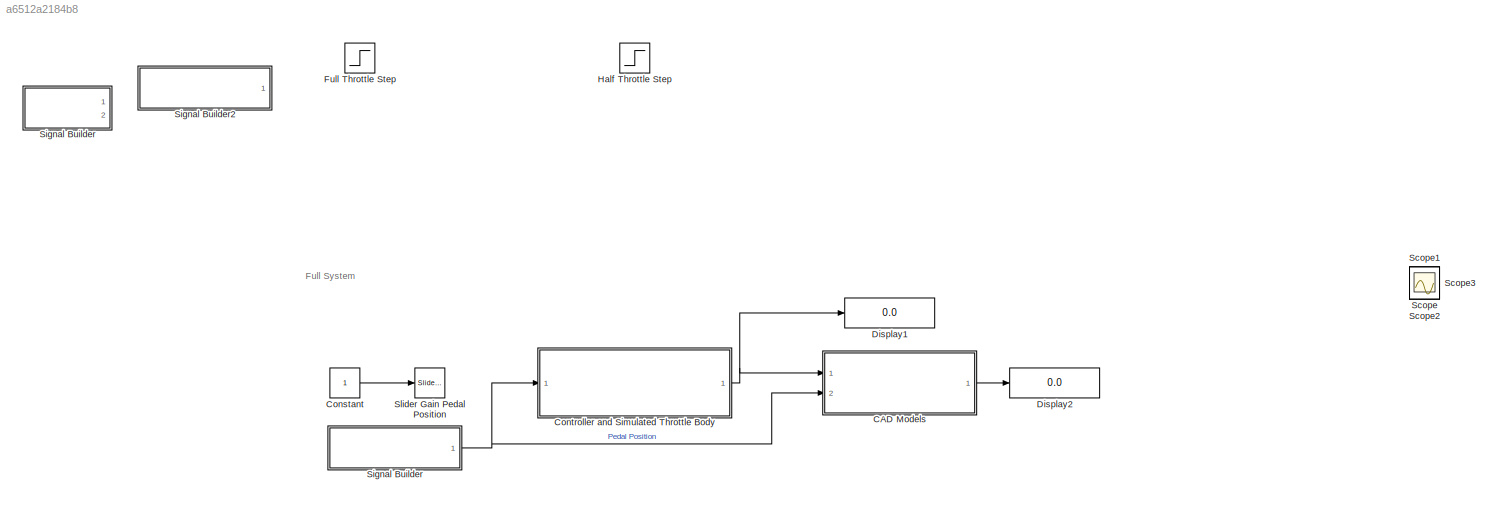
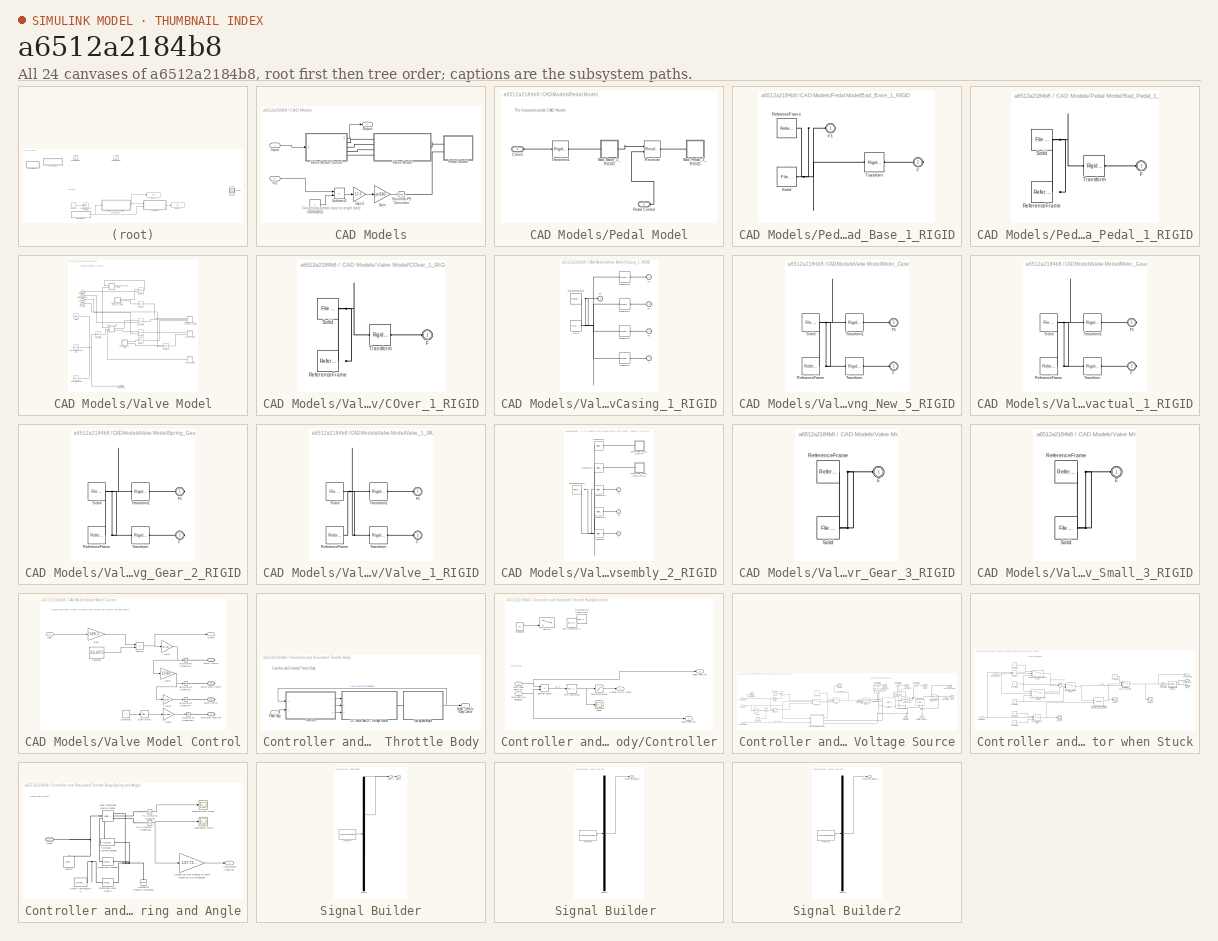
[diagram: thumbnail index - all 24 canvases of the model, root first then tree order]
MODEL slx_a6512a2184b8
KIND model
CONFIG AbsTol = auto
CONFIG EnableMultiTasking = off
CONFIG FixedStep = auto
CONFIG MaxStep = auto
CONFIG MinStep = auto
CONFIG RelTol = 1e-3
CONFIG SampleTimeConstraint = Unconstrained
CONFIG SolverName = VariableStepAuto
CONFIG StartTime = 0.0
CONFIG StopTime = 25
WORKSPACE source: external: MATLAB File  (data not in archive)
BLOCK [SubSystem] CAD Models
  Ports = [2, 1]
  RequestExecContextInheritance = off
BLOCK [Constant] CAD Models/Constant2
BLOCK [Gain] CAD Models/Gain
  Gain = pi/180
BLOCK [Gain] CAD Models/Gain1
  Gain = 15.6
BLOCK [Inport] CAD Models/In2
  Port = 2
BLOCK [Inport] CAD Models/Input
BLOCK [Outport] CAD Models/Output
BLOCK [SubSystem] CAD Models/Pedal Model
  Ports = [0, 0, 0, 0, 0, 2]
  RequestExecContextInheritance = off
BLOCK [SubSystem] CAD Models/Pedal Model/Bad_Base_1_RIGID
  Ports = [0, 0, 0, 0, 0, 1, 1]
  RequestExecContextInheritance = off
BLOCK [PMIOPort] CAD Models/Pedal Model/Bad_Base_1_RIGID/F
  Port = 2
  Side = Right
BLOCK [PMIOPort] CAD Models/Pedal Model/Bad_Base_1_RIGID/F1
  Side = Left
BLOCK [Reference] CAD Models/Pedal Model/Bad_Base_1_RIGID/ReferenceFrame  REF=sm_lib/Frames and
Transforms/Reference
Frame
  Ports = [0, 0, 0, 0, 0, 0, 1]
  SourceBlock = sm_lib/Frames and\nTransforms/Reference\nFrame
  SourceProductBaseCode = MS
  SourceType = Reference\nFrame
BLOCK [Reference] CAD Models/Pedal Model/Bad_Base_1_RIGID/Solid  REF=sm_lib/Body Elements/File Solid
  Ports = [0, 0, 0, 0, 0, 0, 1]
  SourceBlock = sm_lib/Body Elements/File Solid
  SourceProductBaseCode = MS
  SourceType = File Solid
BLOCK [Reference] CAD Models/Pedal Model/Bad_Base_1_RIGID/Transform  REF=sm_lib/Frames and
Transforms/Rigid
Transform
  Ports = [0, 0, 0, 0, 0, 1, 1]
  SourceBlock = sm_lib/Frames and\nTransforms/Rigid\nTransform
  SourceProductBaseCode = MS
  SourceType = Rigid\nTransform
BLOCK [SubSystem] CAD Models/Pedal Model/Bad_Pedal_1_RIGID
  Ports = [0, 0, 0, 0, 0, 1]
  RequestExecContextInheritance = off
BLOCK [PMIOPort] CAD Models/Pedal Model/Bad_Pedal_1_RIGID/F
  Side = Left
BLOCK [Reference] CAD Models/Pedal Model/Bad_Pedal_1_RIGID/ReferenceFrame  REF=sm_lib/Frames and
Transforms/Reference
Frame
  Ports = [0, 0, 0, 0, 0, 0, 1]
  SourceBlock = sm_lib/Frames and\nTransforms/Reference\nFrame
  SourceProductBaseCode = MS
  SourceType = Reference\nFrame
BLOCK [Reference] CAD Models/Pedal Model/Bad_Pedal_1_RIGID/Solid  REF=sm_lib/Body Elements/File Solid
  Ports = [0, 0, 0, 0, 0, 0, 1]
  SourceBlock = sm_lib/Body Elements/File Solid
  SourceProductBaseCode = MS
  SourceType = File Solid
BLOCK [Reference] CAD Models/Pedal Model/Bad_Pedal_1_RIGID/Transform  REF=sm_lib/Frames and
Transforms/Rigid
Transform
  Ports = [0, 0, 0, 0, 0, 1, 1]
  SourceBlock = sm_lib/Frames and\nTransforms/Rigid\nTransform
  SourceProductBaseCode = MS
  SourceType = Rigid\nTransform
BLOCK [PMIOPort] CAD Models/Pedal Model/Conn1
  Side = Left
BLOCK [PMIOPort] CAD Models/Pedal Model/Pedal Control
  Port = 2
  Side = Left
BLOCK [Reference] CAD Models/Pedal Model/Revolute  REF=sm_lib/Joints/Revolute Joint
  Ports = [0, 0, 0, 0, 0, 2, 1]
  SourceBlock = sm_lib/Joints/Revolute Joint
  SourceProductBaseCode = MS
  SourceType = Revolute Joint
BLOCK [Reference] CAD Models/Pedal Model/Transform1  REF=sm_lib/Frames and
Transforms/Rigid
Transform
  Ports = [0, 0, 0, 0, 0, 1, 1]
  SourceBlock = sm_lib/Frames and\nTransforms/Rigid\nTransform
  SourceProductBaseCode = MS
  SourceType = Rigid\nTransform
BLOCK [Reference] CAD Models/Simulink-PS Converter  REF=nesl_utility/Simulink-PS
Converter
  Ports = [1, 0, 0, 0, 0, 0, 1]
  SourceBlock = nesl_utility/Simulink-PS\nConverter
  SourceProductBaseCode = SS,PW,VE
  SourceType = Simulink-PS\nConverter
BLOCK [Sum] CAD Models/Subtract1
  IconShape = rectangular
  Inputs = +-
  Ports = [2, 1]
BLOCK [SubSystem] CAD Models/Valve Model
  Ports = [0, 0, 0, 0, 0, 4, 1]
  RequestExecContextInheritance = off
BLOCK [SubSystem] CAD Models/Valve Model Control
  Ports = [1, 1, 0, 0, 0, 0, 4]
  RequestExecContextInheritance = off
BLOCK [Constant] CAD Models/Valve Model Control/Constant
  Value = 254.4375
BLOCK [Constant] CAD Models/Valve Model Control/Constant2
BLOCK [Gain] CAD Models/Valve Model Control/Gain
  Gain = -1589.3125
BLOCK [Gain] CAD Models/Valve Model Control/Gain1
  Gain = pi/180
BLOCK [Gain] CAD Models/Valve Model Control/Gain2
  Gain = 12/60
BLOCK [Gain] CAD Models/Valve Model Control/Gain3
  Gain = pi/180
BLOCK [Gain] CAD Models/Valve Model Control/Gain4
  Gain = 16/59
BLOCK [Inport] CAD Models/Valve Model Control/Input
BLOCK [PMIOPort] CAD Models/Valve Model Control/Motor Control
  Side = Right
BLOCK [Outport] CAD Models/Valve Model Control/Output
BLOCK [Reference] CAD Models/Valve Model Control/Simulink-PS Converter1  REF=nesl_utility/Simulink-PS
Converter
  Ports = [1, 0, 0, 0, 0, 0, 1]
  SourceBlock = nesl_utility/Simulink-PS\nConverter
  SourceProductBaseCode = SS,PW,VE
  SourceType = Simulink-PS\nConverter
BLOCK [Reference] CAD Models/Valve Model Control/Simulink-PS Converter2  REF=nesl_utility/Simulink-PS
Converter
  Ports = [1, 0, 0, 0, 0, 0, 1]
  SourceBlock = nesl_utility/Simulink-PS\nConverter
  SourceProductBaseCode = SS,PW,VE
  SourceType = Simulink-PS\nConverter
BLOCK [Reference] CAD Models/Valve Model Control/Simulink-PS Converter3  REF=nesl_utility/Simulink-PS
Converter
  Ports = [1, 0, 0, 0, 0, 0, 1]
  SourceBlock = nesl_utility/Simulink-PS\nConverter
  SourceProductBaseCode = SS,PW,VE
  SourceType = Simulink-PS\nConverter
BLOCK [Reference] CAD Models/Valve Model Control/Simulink-PS Converter4  REF=nesl_utility/Simulink-PS
Converter
  Ports = [1, 0, 0, 0, 0, 0, 1]
  SourceBlock = nesl_utility/Simulink-PS\nConverter
  SourceProductBaseCode = SS,PW,VE
  SourceType = Simulink-PS\nConverter
BLOCK [Reference] CAD Models/Valve Model Control/Slider Gain2  REF=simulink/Math
Operations/Slider
Gain
  Ports = [1, 1]
  SourceBlock = simulink/Math\nOperations/Slider\nGain
  SourceProductBaseCode = SL
  SourceType = Slider Gain
BLOCK [Sum] CAD Models/Valve Model Control/Subtract
  IconShape = rectangular
  Inputs = +-
  Ports = [2, 1]
BLOCK [PMIOPort] CAD Models/Valve Model Control/Valve Control
  Port = 3
  Side = Right
BLOCK [PMIOPort] CAD Models/Valve Model Control/Valve Start Position
  Port = 4
  Side = Right
BLOCK [PMIOPort] CAD Models/Valve Model Control/White Gear Control
  Port = 2
  Side = Right
BLOCK [SubSystem] CAD Models/Valve Model/COver_1_RIGID
  Ports = [0, 0, 0, 0, 0, 1]
  RequestExecContextInheritance = off
BLOCK [PMIOPort] CAD Models/Valve Model/COver_1_RIGID/F
  Side = Left
BLOCK [Reference] CAD Models/Valve Model/COver_1_RIGID/ReferenceFrame  REF=sm_lib/Frames and
Transforms/Reference
Frame
  Ports = [0, 0, 0, 0, 0, 0, 1]
  SourceBlock = sm_lib/Frames and\nTransforms/Reference\nFrame
  SourceProductBaseCode = MS
  SourceType = Reference\nFrame
BLOCK [Reference] CAD Models/Valve Model/COver_1_RIGID/Solid  REF=sm_lib/Body Elements/File Solid
  Ports = [0, 0, 0, 0, 0, 0, 1]
  SourceBlock = sm_lib/Body Elements/File Solid
  SourceProductBaseCode = MS
  SourceType = File Solid
BLOCK [Reference] CAD Models/Valve Model/COver_1_RIGID/Transform  REF=sm_lib/Frames and
Transforms/Rigid
Transform
  Ports = [0, 0, 0, 0, 0, 1, 1]
  SourceBlock = sm_lib/Frames and\nTransforms/Rigid\nTransform
  SourceProductBaseCode = MS
  SourceType = Rigid\nTransform
BLOCK [SubSystem] CAD Models/Valve Model/Casing_1_RIGID
  Ports = [0, 0, 0, 0, 0, 3, 2]
  RequestExecContextInheritance = off
BLOCK [PMIOPort] CAD Models/Valve Model/Casing_1_RIGID/F
  Port = 3
  Side = Left
BLOCK [PMIOPort] CAD Models/Valve Model/Casing_1_RIGID/F1
  Port = 5
  Side = Right
BLOCK [PMIOPort] CAD Models/Valve Model/Casing_1_RIGID/F2
  Port = 4
  Side = Right
BLOCK [PMIOPort] CAD Models/Valve Model/Casing_1_RIGID/F3
  Side = Left
BLOCK [PMIOPort] CAD Models/Valve Model/Casing_1_RIGID/F4
  Port = 2
  Side = Left
BLOCK [Reference] CAD Models/Valve Model/Casing_1_RIGID/ReferenceFrame  REF=sm_lib/Frames and
Transforms/Reference
Frame
  Ports = [0, 0, 0, 0, 0, 0, 1]
  SourceBlock = sm_lib/Frames and\nTransforms/Reference\nFrame
  SourceProductBaseCode = MS
  SourceType = Reference\nFrame
BLOCK [Reference] CAD Models/Valve Model/Casing_1_RIGID/Solid  REF=sm_lib/Body Elements/File Solid
  Ports = [0, 0, 0, 0, 0, 0, 1]
  SourceBlock = sm_lib/Body Elements/File Solid
  SourceProductBaseCode = MS
  SourceType = File Solid
BLOCK [Reference] CAD Models/Valve Model/Casing_1_RIGID/Transform  REF=sm_lib/Frames and
Transforms/Rigid
Transform
  Ports = [0, 0, 0, 0, 0, 1, 1]
  SourceBlock = sm_lib/Frames and\nTransforms/Rigid\nTransform
  SourceProductBaseCode = MS
  SourceType = Rigid\nTransform
BLOCK [Reference] CAD Models/Valve Model/Casing_1_RIGID/Transform1  REF=sm_lib/Frames and
Transforms/Rigid
Transform
  Ports = [0, 0, 0, 0, 0, 1, 1]
  SourceBlock = sm_lib/Frames and\nTransforms/Rigid\nTransform
  SourceProductBaseCode = MS
  SourceType = Rigid\nTransform
BLOCK [Reference] CAD Models/Valve Model/Casing_1_RIGID/Transform2  REF=sm_lib/Frames and
Transforms/Rigid
Transform
  Ports = [0, 0, 0, 0, 0, 1, 1]
  SourceBlock = sm_lib/Frames and\nTransforms/Rigid\nTransform
  SourceProductBaseCode = MS
  SourceType = Rigid\nTransform
BLOCK [Reference] CAD Models/Valve Model/Casing_1_RIGID/Transform3  REF=sm_lib/Frames and
Transforms/Rigid
Transform
  Ports = [0, 0, 0, 0, 0, 1, 1]
  SourceBlock = sm_lib/Frames and\nTransforms/Rigid\nTransform
  SourceProductBaseCode = MS
  SourceType = Rigid\nTransform
BLOCK [Reference] CAD Models/Valve Model/Cylindrical  REF=sm_lib/Joints/Cylindrical
Joint
  Ports = [0, 0, 0, 0, 0, 2, 1]
  SourceBlock = sm_lib/Joints/Cylindrical\nJoint
  SourceProductBaseCode = MS
  SourceType = Cylindrical\nJoint
BLOCK [Reference] CAD Models/Valve Model/Cylindrical1  REF=sm_lib/Joints/Cylindrical
Joint
  Ports = [0, 0, 0, 0, 0, 2, 1]
  SourceBlock = sm_lib/Joints/Cylindrical\nJoint
  SourceProductBaseCode = MS
  SourceType = Cylindrical\nJoint
BLOCK [PMIOPort] CAD Models/Valve Model/Initial Valve Position
  Port = 4
  Side = Left
BLOCK [Reference] CAD Models/Valve Model/MechanismConfiguration  REF=sm_lib/Utilities/Mechanism
Configuration
  Ports = [0, 0, 0, 0, 0, 0, 1]
  SourceBlock = sm_lib/Utilities/Mechanism\nConfiguration
  SourceProductBaseCode = MS
  SourceType = Mechanism\nConfiguration
BLOCK [PMIOPort] CAD Models/Valve Model/Motor Model
  Side = Left
BLOCK [SubSystem] CAD Models/Valve Model/Motor_Casing_New_5_RIGID
  Ports = [0, 0, 0, 0, 0, 2]
  RequestExecContextInheritance = off
BLOCK [PMIOPort] CAD Models/Valve Model/Motor_Casing_New_5_RIGID/F
  Side = Left
BLOCK [PMIOPort] CAD Models/Valve Model/Motor_Casing_New_5_RIGID/F1
  Port = 2
  Side = Left
BLOCK [Reference] CAD Models/Valve Model/Motor_Casing_New_5_RIGID/ReferenceFrame  REF=sm_lib/Frames and
Transforms/Reference
Frame
  Ports = [0, 0, 0, 0, 0, 0, 1]
  SourceBlock = sm_lib/Frames and\nTransforms/Reference\nFrame
  SourceProductBaseCode = MS
  SourceType = Reference\nFrame
BLOCK [Reference] CAD Models/Valve Model/Motor_Casing_New_5_RIGID/Solid  REF=sm_lib/Body Elements/File Solid
  Ports = [0, 0, 0, 0, 0, 0, 1]
  SourceBlock = sm_lib/Body Elements/File Solid
  SourceProductBaseCode = MS
  SourceType = File Solid
BLOCK [Reference] CAD Models/Valve Model/Motor_Casing_New_5_RIGID/Transform  REF=sm_lib/Frames and
Transforms/Rigid
Transform
  Ports = [0, 0, 0, 0, 0, 1, 1]
  SourceBlock = sm_lib/Frames and\nTransforms/Rigid\nTransform
  SourceProductBaseCode = MS
  SourceType = Rigid\nTransform
BLOCK [Reference] CAD Models/Valve Model/Motor_Casing_New_5_RIGID/Transform1  REF=sm_lib/Frames and
Transforms/Rigid
Transform
  Ports = [0, 0, 0, 0, 0, 1, 1]
  SourceBlock = sm_lib/Frames and\nTransforms/Rigid\nTransform
  SourceProductBaseCode = MS
  SourceType = Rigid\nTransform
BLOCK [SubSystem] CAD Models/Valve Model/Motor_Gear_and_Shaft_actual_1_RIGID
  Ports = [0, 0, 0, 0, 0, 0, 2]
  RequestExecContextInheritance = off
BLOCK [PMIOPort] CAD Models/Valve Model/Motor_Gear_and_Shaft_actual_1_RIGID/F
  Port = 2
  Side = Right
BLOCK [PMIOPort] CAD Models/Valve Model/Motor_Gear_and_Shaft_actual_1_RIGID/F1
  Side = Right
BLOCK [Reference] CAD Models/Valve Model/Motor_Gear_and_Shaft_actual_1_RIGID/ReferenceFrame  REF=sm_lib/Frames and
Transforms/Reference
Frame
  Ports = [0, 0, 0, 0, 0, 0, 1]
  SourceBlock = sm_lib/Frames and\nTransforms/Reference\nFrame
  SourceProductBaseCode = MS
  SourceType = Reference\nFrame
BLOCK [Reference] CAD Models/Valve Model/Motor_Gear_and_Shaft_actual_1_RIGID/Solid  REF=sm_lib/Body Elements/File Solid
  Ports = [0, 0, 0, 0, 0, 0, 1]
  SourceBlock = sm_lib/Body Elements/File Solid
  SourceProductBaseCode = MS
  SourceType = File Solid
BLOCK [Reference] CAD Models/Valve Model/Motor_Gear_and_Shaft_actual_1_RIGID/Transform  REF=sm_lib/Frames and
Transforms/Rigid
Transform
  Ports = [0, 0, 0, 0, 0, 1, 1]
  SourceBlock = sm_lib/Frames and\nTransforms/Rigid\nTransform
  SourceProductBaseCode = MS
  SourceType = Rigid\nTransform
BLOCK [Reference] CAD Models/Valve Model/Motor_Gear_and_Shaft_actual_1_RIGID/Transform1  REF=sm_lib/Frames and
Transforms/Rigid
Transform
  Ports = [0, 0, 0, 0, 0, 1, 1]
  SourceBlock = sm_lib/Frames and\nTransforms/Rigid\nTransform
  SourceProductBaseCode = MS
  SourceType = Rigid\nTransform
BLOCK [PMIOPort] CAD Models/Valve Model/Pedal Model
  Port = 5
  Side = Right
BLOCK [Reference] CAD Models/Valve Model/Planar  REF=sm_lib/Joints/Planar Joint
  Ports = [0, 0, 0, 0, 0, 1, 1]
  SourceBlock = sm_lib/Joints/Planar Joint
  SourceProductBaseCode = MS
  SourceType = Planar Joint
BLOCK [Reference] CAD Models/Valve Model/Planar1  REF=sm_lib/Joints/Planar Joint
  Ports = [0, 0, 0, 0, 0, 1, 1]
  SourceBlock = sm_lib/Joints/Planar Joint
  SourceProductBaseCode = MS
  SourceType = Planar Joint
BLOCK [Reference] CAD Models/Valve Model/Revolute1  REF=sm_lib/Joints/Revolute Joint
  Ports = [0, 0, 0, 0, 0, 2, 1]
  SourceBlock = sm_lib/Joints/Revolute Joint
  SourceProductBaseCode = MS
  SourceType = Revolute Joint
BLOCK [Reference] CAD Models/Valve Model/Revolute2  REF=sm_lib/Joints/Revolute Joint
  Ports = [0, 0, 0, 0, 0, 2, 1]
  SourceBlock = sm_lib/Joints/Revolute Joint
  SourceProductBaseCode = MS
  SourceType = Revolute Joint
BLOCK [Reference] CAD Models/Valve Model/Solver Configuration  REF=nesl_utility/Solver
Configuration
  Ports = [0, 0, 0, 0, 0, 0, 1]
  SourceBlock = nesl_utility/Solver\nConfiguration
  SourceProductBaseCode = SS,PW,VE
  SourceType = Solver\nConfiguration
BLOCK [SubSystem] CAD Models/Valve Model/Spring_Gear_2_RIGID
  Ports = [0, 0, 0, 0, 0, 0, 2]
  RequestExecContextInheritance = off
BLOCK [PMIOPort] CAD Models/Valve Model/Spring_Gear_2_RIGID/F
  Port = 2
  Side = Right
BLOCK [PMIOPort] CAD Models/Valve Model/Spring_Gear_2_RIGID/F1
  Side = Right
BLOCK [Reference] CAD Models/Valve Model/Spring_Gear_2_RIGID/ReferenceFrame  REF=sm_lib/Frames and
Transforms/Reference
Frame
  Ports = [0, 0, 0, 0, 0, 0, 1]
  SourceBlock = sm_lib/Frames and\nTransforms/Reference\nFrame
  SourceProductBaseCode = MS
  SourceType = Reference\nFrame
BLOCK [Reference] CAD Models/Valve Model/Spring_Gear_2_RIGID/Solid  REF=sm_lib/Body Elements/File Solid
  Ports = [0, 0, 0, 0, 0, 0, 1]
  SourceBlock = sm_lib/Body Elements/File Solid
  SourceProductBaseCode = MS
  SourceType = File Solid
BLOCK [Reference] CAD Models/Valve Model/Spring_Gear_2_RIGID/Transform  REF=sm_lib/Frames and
Transforms/Rigid
Transform
  Ports = [0, 0, 0, 0, 0, 1, 1]
  SourceBlock = sm_lib/Frames and\nTransforms/Rigid\nTransform
  SourceProductBaseCode = MS
  SourceType = Rigid\nTransform
BLOCK [Reference] CAD Models/Valve Model/Spring_Gear_2_RIGID/Transform1  REF=sm_lib/Frames and
Transforms/Rigid
Transform
  Ports = [0, 0, 0, 0, 0, 1, 1]
  SourceBlock = sm_lib/Frames and\nTransforms/Rigid\nTransform
  SourceProductBaseCode = MS
  SourceType = Rigid\nTransform
BLOCK [Reference] CAD Models/Valve Model/Transform  REF=sm_lib/Frames and
Transforms/Rigid
Transform
  Ports = [0, 0, 0, 0, 0, 1, 1]
  SourceBlock = sm_lib/Frames and\nTransforms/Rigid\nTransform
  SourceProductBaseCode = MS
  SourceType = Rigid\nTransform
BLOCK [PMIOPort] CAD Models/Valve Model/Valve Model
  Port = 3
  Side = Left
BLOCK [SubSystem] CAD Models/Valve Model/Valve_1_RIGID
  Ports = [0, 0, 0, 0, 0, 2]
  RequestExecContextInheritance = off
BLOCK [PMIOPort] CAD Models/Valve Model/Valve_1_RIGID/F
  Port = 2
  Side = Left
BLOCK [PMIOPort] CAD Models/Valve Model/Valve_1_RIGID/F1
  Side = Left
BLOCK [Reference] CAD Models/Valve Model/Valve_1_RIGID/ReferenceFrame  REF=sm_lib/Frames and
Transforms/Reference
Frame
  Ports = [0, 0, 0, 0, 0, 0, 1]
  SourceBlock = sm_lib/Frames and\nTransforms/Reference\nFrame
  SourceProductBaseCode = MS
  SourceType = Reference\nFrame
BLOCK [Reference] CAD Models/Valve Model/Valve_1_RIGID/Solid  REF=sm_lib/Body Elements/File Solid
  Ports = [0, 0, 0, 0, 0, 0, 1]
  SourceBlock = sm_lib/Body Elements/File Solid
  SourceProductBaseCode = MS
  SourceType = File Solid
BLOCK [Reference] CAD Models/Valve Model/Valve_1_RIGID/Transform  REF=sm_lib/Frames and
Transforms/Rigid
Transform
  Ports = [0, 0, 0, 0, 0, 1, 1]
  SourceBlock = sm_lib/Frames and\nTransforms/Rigid\nTransform
  SourceProductBaseCode = MS
  SourceType = Rigid\nTransform
BLOCK [Reference] CAD Models/Valve Model/Valve_1_RIGID/Transform1  REF=sm_lib/Frames and
Transforms/Rigid
Transform
  Ports = [0, 0, 0, 0, 0, 1, 1]
  SourceBlock = sm_lib/Frames and\nTransforms/Rigid\nTransform
  SourceProductBaseCode = MS
  SourceType = Rigid\nTransform
BLOCK [PMIOPort] CAD Models/Valve Model/White Gear Model
  Port = 2
  Side = Left
BLOCK [SubSystem] CAD Models/Valve Model/White_Idler_Gear_Assembly_2_RIGID
  Ports = [0, 0, 0, 0, 0, 3]
  RequestExecContextInheritance = off
BLOCK [PMIOPort] CAD Models/Valve Model/White_Idler_Gear_Assembly_2_RIGID/F
  Port = 3
  Side = Left
BLOCK [PMIOPort] CAD Models/Valve Model/White_Idler_Gear_Assembly_2_RIGID/F1
  Side = Left
BLOCK [PMIOPort] CAD Models/Valve Model/White_Idler_Gear_Assembly_2_RIGID/F2
  Port = 2
  Side = Left
BLOCK [Reference] CAD Models/Valve Model/White_Idler_Gear_Assembly_2_RIGID/ReferenceFrame  REF=sm_lib/Frames and
Transforms/Reference
Frame
  Ports = [0, 0, 0, 0, 0, 0, 1]
  SourceBlock = sm_lib/Frames and\nTransforms/Reference\nFrame
  SourceProductBaseCode = MS
  SourceType = Reference\nFrame
BLOCK [Reference] CAD Models/Valve Model/White_Idler_Gear_Assembly_2_RIGID/Transform  REF=sm_lib/Frames and
Transforms/Rigid
Transform
  Ports = [0, 0, 0, 0, 0, 1, 1]
  SourceBlock = sm_lib/Frames and\nTransforms/Rigid\nTransform
  SourceProductBaseCode = MS
  SourceType = Rigid\nTransform
BLOCK [Reference] CAD Models/Valve Model/White_Idler_Gear_Assembly_2_RIGID/Transform1  REF=sm_lib/Frames and
Transforms/Rigid
Transform
  Ports = [0, 0, 0, 0, 0, 1, 1]
  SourceBlock = sm_lib/Frames and\nTransforms/Rigid\nTransform
  SourceProductBaseCode = MS
  SourceType = Rigid\nTransform
BLOCK [Reference] CAD Models/Valve Model/White_Idler_Gear_Assembly_2_RIGID/Transform2  REF=sm_lib/Frames and
Transforms/Rigid
Transform
  Ports = [0, 0, 0, 0, 0, 1, 1]
  SourceBlock = sm_lib/Frames and\nTransforms/Rigid\nTransform
  SourceProductBaseCode = MS
  SourceType = Rigid\nTransform
BLOCK [Reference] CAD Models/Valve Model/White_Idler_Gear_Assembly_2_RIGID/Transform3  REF=sm_lib/Frames and
Transforms/Rigid
Transform
  Ports = [0, 0, 0, 0, 0, 1, 1]
  SourceBlock = sm_lib/Frames and\nTransforms/Rigid\nTransform
  SourceProductBaseCode = MS
  SourceType = Rigid\nTransform
BLOCK [Reference] CAD Models/Valve Model/White_Idler_Gear_Assembly_2_RIGID/Transform4  REF=sm_lib/Frames and
Transforms/Rigid
Transform
  Ports = [0, 0, 0, 0, 0, 1, 1]
  SourceBlock = sm_lib/Frames and\nTransforms/Rigid\nTransform
  SourceProductBaseCode = MS
  SourceType = Rigid\nTransform
BLOCK [SubSystem] CAD Models/Valve Model/White_Idler_Gear_Assembly_2_RIGID/White_Idler_Gear_3_RIGID
  Ports = [0, 0, 0, 0, 0, 1]
  RequestExecContextInheritance = off
BLOCK [PMIOPort] CAD Models/Valve Model/White_Idler_Gear_Assembly_2_RIGID/White_Idler_Gear_3_RIGID/F
  Side = Left
BLOCK [Reference] CAD Models/Valve Model/White_Idler_Gear_Assembly_2_RIGID/White_Idler_Gear_3_RIGID/ReferenceFrame  REF=sm_lib/Frames and
Transforms/Reference
Frame
  Ports = [0, 0, 0, 0, 0, 0, 1]
  SourceBlock = sm_lib/Frames and\nTransforms/Reference\nFrame
  SourceProductBaseCode = MS
  SourceType = Reference\nFrame
BLOCK [Reference] CAD Models/Valve Model/White_Idler_Gear_Assembly_2_RIGID/White_Idler_Gear_3_RIGID/Solid  REF=sm_lib/Body Elements/File Solid
  Ports = [0, 0, 0, 0, 0, 0, 1]
  SourceBlock = sm_lib/Body Elements/File Solid
  SourceProductBaseCode = MS
  SourceType = File Solid
BLOCK [SubSystem] CAD Models/Valve Model/White_Idler_Gear_Assembly_2_RIGID/White_Idler_Gear_Small_3_RIGID
  Ports = [0, 0, 0, 0, 0, 1]
  RequestExecContextInheritance = off
BLOCK [PMIOPort] CAD Models/Valve Model/White_Idler_Gear_Assembly_2_RIGID/White_Idler_Gear_Small_3_RIGID/F
  Side = Left
BLOCK [Reference] CAD Models/Valve Model/White_Idler_Gear_Assembly_2_RIGID/White_Idler_Gear_Small_3_RIGID/ReferenceFrame  REF=sm_lib/Frames and
Transforms/Reference
Frame
  Ports = [0, 0, 0, 0, 0, 0, 1]
  SourceBlock = sm_lib/Frames and\nTransforms/Reference\nFrame
  SourceProductBaseCode = MS
  SourceType = Reference\nFrame
BLOCK [Reference] CAD Models/Valve Model/White_Idler_Gear_Assembly_2_RIGID/White_Idler_Gear_Small_3_RIGID/Solid  REF=sm_lib/Body Elements/File Solid
  Ports = [0, 0, 0, 0, 0, 0, 1]
  SourceBlock = sm_lib/Body Elements/File Solid
  SourceProductBaseCode = MS
  SourceType = File Solid
BLOCK [Reference] CAD Models/Valve Model/World  REF=sm_lib/Frames and
Transforms/World Frame
  Ports = [0, 0, 0, 0, 0, 0, 1]
  SourceBlock = sm_lib/Frames and\nTransforms/World Frame
  SourceProductBaseCode = MS
  SourceType = World Frame
BLOCK [Constant] Constant 
  Commented = on
BLOCK [SubSystem] Controller and Simulated Throttle Body
  Ports = [1, 1]
  RequestExecContextInheritance = off
BLOCK [SubSystem] Controller and Simulated Throttle Body/Controller
  Ports = [2, 3]
  RequestExecContextInheritance = off
BLOCK [Constant] Controller and Simulated Throttle Body/Controller/Constant
  Commented = on
  Value = 0.2
BLOCK [Reference] Controller and Simulated Throttle Body/Controller/Discrete PID Controller1  REF=slpidlib/PID Controller
  Commented = on
  Ports = [1, 1]
  SourceBlock = slpidlib/PID Controller
  SourceProductBaseCode = SL
  SourceType = PID 1dof
BLOCK [Inport] Controller and Simulated Throttle Body/Controller/Input Pedal Position
  Port = 2
BLOCK [Outport] Controller and Simulated Throttle Body/Controller/Output to DC Motor
BLOCK [Reference] Controller and Simulated Throttle Body/Controller/PID Controller   REF=slpidlib/PID Controller
  Ports = [1, 1]
  SourceBlock = slpidlib/PID Controller
  SourceProductBaseCode = SL
  SourceType = PID 1dof
BLOCK [Reference] Controller and Simulated Throttle Body/Controller/PID Controller 1  REF=slpidlib/PID Controller
  Commented = on
  Ports = [1, 1]
  SourceBlock = slpidlib/PID Controller
  SourceProductBaseCode = SL
  SourceType = PID 1dof
BLOCK [Outport] Controller and Simulated Throttle Body/Controller/Pedal Position
  Port = 2
BLOCK [Saturate] Controller and Simulated Throttle Body/Controller/Saturation Block
  LowerLimit = 0
  UpperLimit = 1
BLOCK [Scope] Controller and Simulated Throttle Body/Controller/Scope 
  Floating = off
  NumInputPorts = 1
  Ports = [1]
  ScopeSpecificationString = Simulink.scopes.TimeScopeBlockCfg('CurrentConfiguration', extmgr.ConfigurationSet(extmgr.Configuration('Core','General UI',true),extmgr.Configuration('Core','Source UI',true),extmgr.Configuration('Sources','WiredSimulink',true,'DataLoggingVariableName','ScopeData1','DataLoggingSaveFormat','Array','DataLoggingDecimation','1'),extmgr.Configuration('Visuals','Time Domain',true,'SerializedDisplays',{s...<+1676ch>
BLOCK [Sum] Controller and Simulated Throttle Body/Controller/Subtract Block
  IconShape = rectangular
  Inputs = +-
  Ports = [2, 1]
BLOCK [Switch] Controller and Simulated Throttle Body/Controller/Switch
  Commented = on
  Criteria = u2 > Threshold
  InputSameDT = off
  SaturateOnIntegerOverflow = off
  Threshold = -0.2
BLOCK [Outport] Controller and Simulated Throttle Body/Controller/Valve Position
  Port = 3
BLOCK [Inport] Controller and Simulated Throttle Body/Controller/Valve Position Feedback 
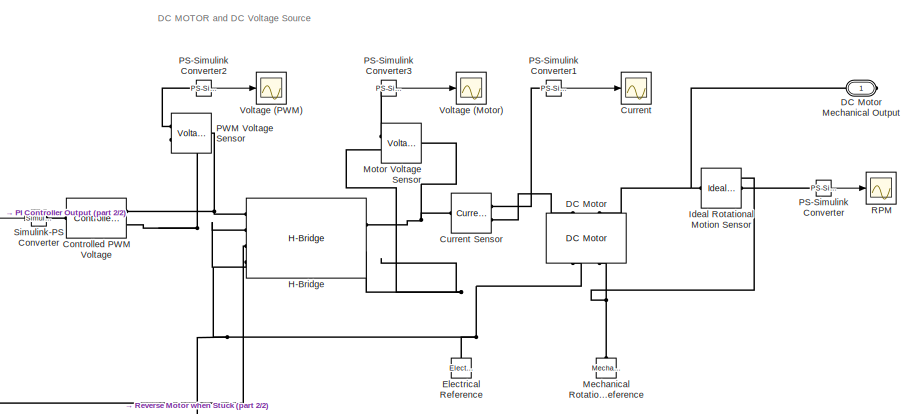
[diagram: Controller and Simulated Throttle Body/DC Motor and DC Voltage Source - part 1/2, right side, full height]
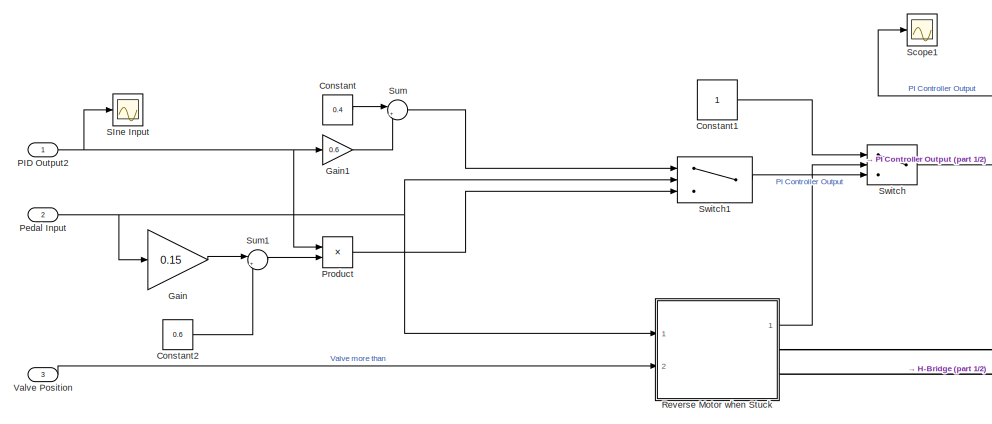
[diagram: Controller and Simulated Throttle Body/DC Motor and DC Voltage Source - part 2/2, left side, full height]
BLOCK [SubSystem] Controller and Simulated Throttle Body/DC Motor and DC Voltage Source
  Ports = [3, 0, 0, 0, 0, 0, 1]
  RequestExecContextInheritance = off
BLOCK [Constant] Controller and Simulated Throttle Body/DC Motor and DC Voltage Source/Constant
  Value = 0.4
BLOCK [Constant] Controller and Simulated Throttle Body/DC Motor and DC Voltage Source/Constant1
BLOCK [Constant] Controller and Simulated Throttle Body/DC Motor and DC Voltage Source/Constant2
  Value = 0.6
BLOCK [Reference] Controller and Simulated Throttle Body/DC Motor and DC Voltage Source/Controlled PWM Voltage   REF=ee_lib/Integrated Circuits/Controlled PWM
Voltage
  Ports = [0, 0, 0, 0, 0, 1, 2]
  SourceBlock = ee_lib/Integrated Circuits/Controlled PWM\nVoltage
  SourceProductBaseCode = PS
  SourceType = Controlled PWM\nVoltage
BLOCK [Scope] Controller and Simulated Throttle Body/DC Motor and DC Voltage Source/Current
  Floating = off
  NumInputPorts = 1
  Ports = [1]
  ScopeSpecificationString = Simulink.scopes.TimeScopeBlockCfg('CurrentConfiguration', extmgr.ConfigurationSet(extmgr.Configuration('Core','General UI',true),extmgr.Configuration('Core','Source UI',true),extmgr.Configuration('Sources','WiredSimulink',true,'DataLoggingVariableName','ScopeData1'),extmgr.Configuration('Visuals','Time Domain',true,'SerializedDisplays',{struct('MinYLimReal','-1.48991','MaxYLimReal','13.40916','YLa...<+1464ch>
BLOCK [Reference] Controller and Simulated Throttle Body/DC Motor and DC Voltage Source/Current Sensor   REF=fl_lib/Electrical/Electrical Sensors/Current Sensor
  Ports = [0, 0, 0, 0, 0, 1, 2]
  SourceBlock = fl_lib/Electrical/Electrical Sensors/Current Sensor
  SourceProductBaseCode = PW,SS,VE
  SourceType = Current Sensor
BLOCK [Reference] Controller and Simulated Throttle Body/DC Motor and DC Voltage Source/DC Motor   REF=ee_lib/Electromechanical/Brushed Motors/DC Motor
  NameLocation = right
  Ports = [0, 0, 0, 0, 0, 2, 2]
  SourceBlock = ee_lib/Electromechanical/Brushed Motors/DC Motor
  SourceProductBaseCode = PS
  SourceType = DC Motor
BLOCK [PMIOPort] Controller and Simulated Throttle Body/DC Motor and DC Voltage Source/DC Motor Mechanical Output
  Side = Right
BLOCK [Reference] Controller and Simulated Throttle Body/DC Motor and DC Voltage Source/Electrical Reference   REF=fl_lib/Electrical/Electrical Elements/Electrical Reference
  NameLocation = right
  Ports = [0, 0, 0, 0, 0, 1]
  SourceBlock = fl_lib/Electrical/Electrical Elements/Electrical Reference
  SourceProductBaseCode = PW,SS,VE
  SourceType = Electrical Reference
BLOCK [Gain] Controller and Simulated Throttle Body/DC Motor and DC Voltage Source/Gain
  Gain = 0.15
BLOCK [Gain] Controller and Simulated Throttle Body/DC Motor and DC Voltage Source/Gain1
  Gain = 0.6
BLOCK [Reference] Controller and Simulated Throttle Body/DC Motor and DC Voltage Source/H-Bridge   REF=ee_lib/Semiconductors &
Converters/Converters/H-Bridge
  Ports = [0, 0, 0, 0, 0, 4, 2]
  SourceBlock = ee_lib/Semiconductors &\nConverters/Converters/H-Bridge
  SourceProductBaseCode = PS
  SourceType = H-Bridge
BLOCK [Reference] Controller and Simulated Throttle Body/DC Motor and DC Voltage Source/Ideal Rotational Motion Sensor   REF=fl_lib/Mechanical/Mechanical Sensors/Ideal Rotational
Motion Sensor
  Ports = [0, 0, 0, 0, 0, 1, 3]
  SourceBlock = fl_lib/Mechanical/Mechanical Sensors/Ideal Rotational\nMotion Sensor
  SourceProductBaseCode = PW,SS,VE
  SourceType = Ideal Rotational\nMotion Sensor
BLOCK [Reference] Controller and Simulated Throttle Body/DC Motor and DC Voltage Source/Mechanical Rotational Reference   REF=fl_lib/Mechanical/Rotational Elements/Mechanical
Rotational Reference
  NameLocation = right
  Ports = [0, 0, 0, 0, 0, 1]
  SourceBlock = fl_lib/Mechanical/Rotational Elements/Mechanical\nRotational Reference
  SourceProductBaseCode = PW,SS,VE
  SourceType = Mechanical\nRotational Reference
BLOCK [Reference] Controller and Simulated Throttle Body/DC Motor and DC Voltage Source/Motor Voltage Sensor   REF=fl_lib/Electrical/Electrical Sensors/Voltage Sensor
  Ports = [0, 0, 0, 0, 0, 1, 2]
  SourceBlock = fl_lib/Electrical/Electrical Sensors/Voltage Sensor
  SourceProductBaseCode = PW,SS,VE
  SourceType = Voltage Sensor
BLOCK [Inport] Controller and Simulated Throttle Body/DC Motor and DC Voltage Source/PID Output2
BLOCK [Reference] Controller and Simulated Throttle Body/DC Motor and DC Voltage Source/PS-Simulink Converter   REF=nesl_utility/PS-Simulink
Converter
  Ports = [0, 1, 0, 0, 0, 1]
  SourceBlock = nesl_utility/PS-Simulink\nConverter
  SourceProductBaseCode = SS,PW,VE
  SourceType = PS-Simulink\nConverter
BLOCK [Reference] Controller and Simulated Throttle Body/DC Motor and DC Voltage Source/PS-Simulink Converter1  REF=nesl_utility/PS-Simulink
Converter
  Ports = [0, 1, 0, 0, 0, 1]
  SourceBlock = nesl_utility/PS-Simulink\nConverter
  SourceProductBaseCode = SS,PW,VE
  SourceType = PS-Simulink\nConverter
BLOCK [Reference] Controller and Simulated Throttle Body/DC Motor and DC Voltage Source/PS-Simulink Converter2  REF=nesl_utility/PS-Simulink
Converter
  Ports = [0, 1, 0, 0, 0, 1]
  SourceBlock = nesl_utility/PS-Simulink\nConverter
  SourceProductBaseCode = SS,PW,VE
  SourceType = PS-Simulink\nConverter
BLOCK [Reference] Controller and Simulated Throttle Body/DC Motor and DC Voltage Source/PS-Simulink Converter3  REF=nesl_utility/PS-Simulink
Converter
  Ports = [0, 1, 0, 0, 0, 1]
  SourceBlock = nesl_utility/PS-Simulink\nConverter
  SourceProductBaseCode = SS,PW,VE
  SourceType = PS-Simulink\nConverter
BLOCK [Reference] Controller and Simulated Throttle Body/DC Motor and DC Voltage Source/PWM Voltage Sensor  REF=fl_lib/Electrical/Electrical Sensors/Voltage Sensor
  Ports = [0, 0, 0, 0, 0, 1, 2]
  SourceBlock = fl_lib/Electrical/Electrical Sensors/Voltage Sensor
  SourceProductBaseCode = PW,SS,VE
  SourceType = Voltage Sensor
BLOCK [Inport] Controller and Simulated Throttle Body/DC Motor and DC Voltage Source/Pedal Input
  Port = 2
BLOCK [Product] Controller and Simulated Throttle Body/DC Motor and DC Voltage Source/Product
  Ports = [2, 1]
BLOCK [Scope] Controller and Simulated Throttle Body/DC Motor and DC Voltage Source/RPM
  Floating = off
  NumInputPorts = 1
  Ports = [1]
  ScopeSpecificationString = Simulink.scopes.TimeScopeBlockCfg('CurrentConfiguration', extmgr.ConfigurationSet(extmgr.Configuration('Core','General UI',true),extmgr.Configuration('Core','Source UI',true),extmgr.Configuration('Sources','WiredSimulink',true),extmgr.Configuration('Visuals','Time Domain',true,'SerializedDisplays',{struct('MinYLimReal','-161.82166','MaxYLimReal','211.80341','YLabelReal','','MinYLimMag',' 0.00000',...<+1438ch>
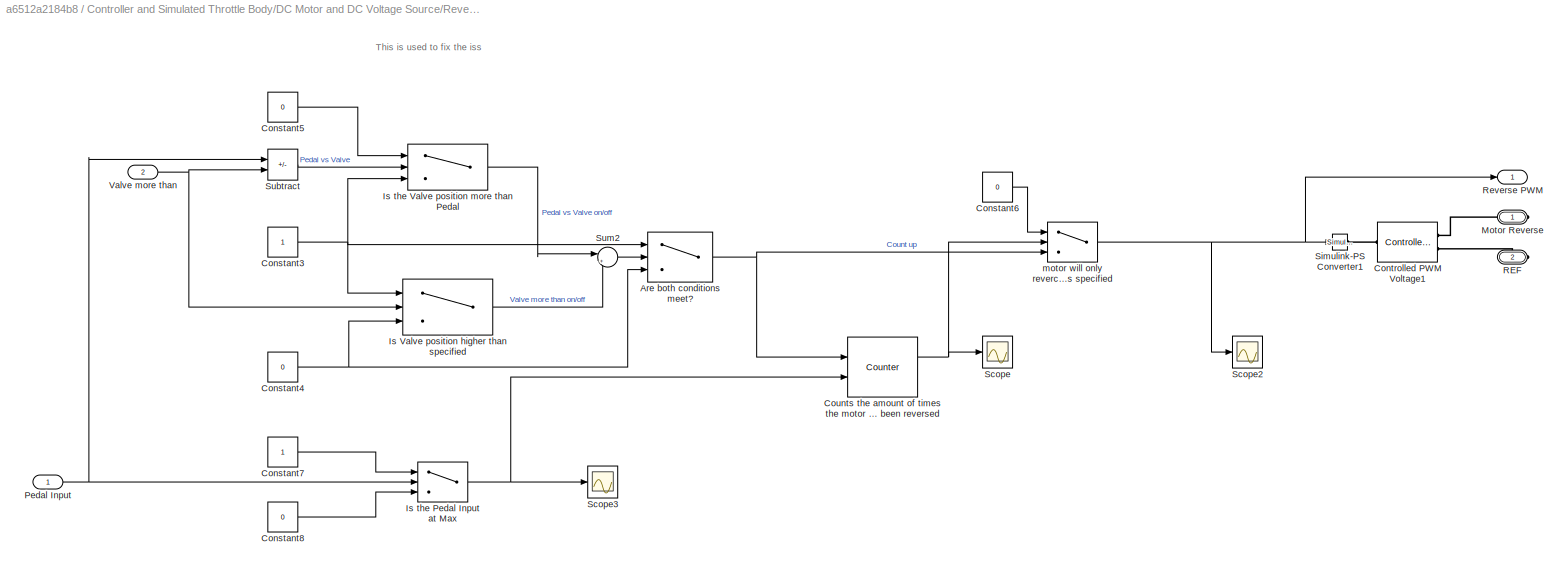
BLOCK [SubSystem] Controller and Simulated Throttle Body/DC Motor and DC Voltage Source/Reverse Motor when Stuck
  Ports = [2, 1, 0, 0, 0, 0, 2]
  RequestExecContextInheritance = off
BLOCK [Switch] Controller and Simulated Throttle Body/DC Motor and DC Voltage Source/Reverse Motor when Stuck/Are both conditions meet?
  Criteria = u2 > Threshold
  InputSameDT = off
  SaturateOnIntegerOverflow = off
  Threshold = 1.9
BLOCK [Constant] Controller and Simulated Throttle Body/DC Motor and DC Voltage Source/Reverse Motor when Stuck/Constant3
BLOCK [Constant] Controller and Simulated Throttle Body/DC Motor and DC Voltage Source/Reverse Motor when Stuck/Constant4
  Value = 0
BLOCK [Constant] Controller and Simulated Throttle Body/DC Motor and DC Voltage Source/Reverse Motor when Stuck/Constant5
  Value = 0
BLOCK [Constant] Controller and Simulated Throttle Body/DC Motor and DC Voltage Source/Reverse Motor when Stuck/Constant6
  Value = 0
BLOCK [Constant] Controller and Simulated Throttle Body/DC Motor and DC Voltage Source/Reverse Motor when Stuck/Constant7
BLOCK [Constant] Controller and Simulated Throttle Body/DC Motor and DC Voltage Source/Reverse Motor when Stuck/Constant8
  Value = 0
BLOCK [Reference] Controller and Simulated Throttle Body/DC Motor and DC Voltage Source/Reverse Motor when Stuck/Controlled PWM Voltage1  REF=ee_lib/Integrated Circuits/Controlled PWM
Voltage
  Ports = [0, 0, 0, 0, 0, 1, 2]
  SourceBlock = ee_lib/Integrated Circuits/Controlled PWM\nVoltage
  SourceProductBaseCode = PS
  SourceType = Controlled PWM\nVoltage
BLOCK [Reference] Controller and Simulated Throttle Body/DC Motor and DC Voltage Source/Reverse Motor when Stuck/Counts the amount of times the motor has been reversed  REF=dspswit3/Counter
  Ports = [2, 2]
  SourceBlock = dspswit3/Counter
  SourceProductBaseCode = DS
  SourceType = Counter
BLOCK [Switch] Controller and Simulated Throttle Body/DC Motor and DC Voltage Source/Reverse Motor when Stuck/Is Valve position higher than specified
  InputSameDT = off
  SaturateOnIntegerOverflow = off
  Threshold = 0.995
BLOCK [Switch] Controller and Simulated Throttle Body/DC Motor and DC Voltage Source/Reverse Motor when Stuck/Is the Pedal Input at Max
  InputSameDT = off
  SaturateOnIntegerOverflow = off
  Threshold = 1
BLOCK [Switch] Controller and Simulated Throttle Body/DC Motor and DC Voltage Source/Reverse Motor when Stuck/Is the Valve position more than Pedal
  InputSameDT = off
  SaturateOnIntegerOverflow = off
  Threshold = -0.1
BLOCK [PMIOPort] Controller and Simulated Throttle Body/DC Motor and DC Voltage Source/Reverse Motor when Stuck/Motor Reverse
  Side = Right
BLOCK [Inport] Controller and Simulated Throttle Body/DC Motor and DC Voltage Source/Reverse Motor when Stuck/Pedal Input
BLOCK [PMIOPort] Controller and Simulated Throttle Body/DC Motor and DC Voltage Source/Reverse Motor when Stuck/REF
  Port = 2
  Side = Right
BLOCK [Outport] Controller and Simulated Throttle Body/DC Motor and DC Voltage Source/Reverse Motor when Stuck/Reverse PWM
BLOCK [Scope] Controller and Simulated Throttle Body/DC Motor and DC Voltage Source/Reverse Motor when Stuck/Scope
  Floating = off
  NumInputPorts = 1
  Ports = [1]
  ScopeSpecificationString = Simulink.scopes.TimeScopeBlockCfg('CurrentConfiguration', extmgr.ConfigurationSet(extmgr.Configuration('Core','General UI',true),extmgr.Configuration('Core','Source UI',true),extmgr.Configuration('Sources','WiredSimulink',true,'DataLoggingVariableName','ScopeData2'),extmgr.Configuration('Visuals','Time Domain',true,'SerializedDisplays',{struct('MinYLimReal','-1.625','MaxYLimReal','14.625','YLabelR...<+1436ch>
BLOCK [Scope] Controller and Simulated Throttle Body/DC Motor and DC Voltage Source/Reverse Motor when Stuck/Scope2
  Floating = off
  NumInputPorts = 1
  Ports = [1]
  ScopeSpecificationString = Simulink.scopes.TimeScopeBlockCfg('CurrentConfiguration', extmgr.ConfigurationSet(extmgr.Configuration('Core','General UI',true),extmgr.Configuration('Core','Source UI',true),extmgr.Configuration('Sources','WiredSimulink',true,'DataLoggingVariableName','ScopeData1'),extmgr.Configuration('Visuals','Time Domain',true,'SerializedDisplays',{struct('MinYLimReal','-0.125','MaxYLimReal','1.125','YLabelRe...<+1468ch>
BLOCK [Scope] Controller and Simulated Throttle Body/DC Motor and DC Voltage Source/Reverse Motor when Stuck/Scope3
  Floating = off
  NumInputPorts = 1
  Ports = [1]
  ScopeSpecificationString = Simulink.scopes.TimeScopeBlockCfg('CurrentConfiguration', extmgr.ConfigurationSet(extmgr.Configuration('Core','General UI',true),extmgr.Configuration('Core','Source UI',true),extmgr.Configuration('Sources','WiredSimulink',true,'DataLoggingVariableName','ScopeData2'),extmgr.Configuration('Visuals','Time Domain',true,'SerializedDisplays',{struct('MinYLimReal','-0.125','MaxYLimReal','1.125','YLabelRe...<+1468ch>
BLOCK [Reference] Controller and Simulated Throttle Body/DC Motor and DC Voltage Source/Reverse Motor when Stuck/Simulink-PS Converter1  REF=nesl_utility/Simulink-PS
Converter
  Ports = [1, 0, 0, 0, 0, 0, 1]
  SourceBlock = nesl_utility/Simulink-PS\nConverter
  SourceProductBaseCode = SS,PW,VE
  SourceType = Simulink-PS\nConverter
BLOCK [Sum] Controller and Simulated Throttle Body/DC Motor and DC Voltage Source/Reverse Motor when Stuck/Subtract
  IconShape = rectangular
  Inputs = +-
  Ports = [2, 1]
BLOCK [Sum] Controller and Simulated Throttle Body/DC Motor and DC Voltage Source/Reverse Motor when Stuck/Sum2
  Inputs = |++
  Ports = [2, 1]
BLOCK [Inport] Controller and Simulated Throttle Body/DC Motor and DC Voltage Source/Reverse Motor when Stuck/Valve more than
  Port = 2
BLOCK [Switch] Controller and Simulated Throttle Body/DC Motor and DC Voltage Source/Reverse Motor when Stuck/motor will only reverced the amount of times specified
  Criteria = u2 > Threshold
  InputSameDT = off
  SaturateOnIntegerOverflow = off
  Threshold = 5.5
BLOCK [Scope] Controller and Simulated Throttle Body/DC Motor and DC Voltage Source/SIne Input
  Floating = off
  NumInputPorts = 1
  Ports = [1]
  ScopeSpecificationString = Simulink.scopes.TimeScopeBlockCfg('CurrentConfiguration', extmgr.ConfigurationSet(extmgr.Configuration('Core','General UI',true),extmgr.Configuration('Core','Source UI',true),extmgr.Configuration('Sources','WiredSimulink',true,'DataLoggingVariableName','ScopeData4'),extmgr.Configuration('Visuals','Time Domain',true,'SerializedDisplays',{struct('MinYLimReal','-0.125','MaxYLimReal','1.125','YLabelRe...<+1421ch>
BLOCK [Scope] Controller and Simulated Throttle Body/DC Motor and DC Voltage Source/Scope1
  Floating = off
  NumInputPorts = 1
  Ports = [1]
  ScopeSpecificationString = Simulink.scopes.TimeScopeBlockCfg('CurrentConfiguration', extmgr.ConfigurationSet(extmgr.Configuration('Core','General UI',true),extmgr.Configuration('Core','Source UI',true),extmgr.Configuration('Sources','WiredSimulink',true,'DataLoggingVariableName','ScopeData1'),extmgr.Configuration('Visuals','Time Domain',true,'SerializedDisplays',{struct('MinYLimReal','-0.125','MaxYLimReal','1.125','YLabelRe...<+1463ch>
BLOCK [Reference] Controller and Simulated Throttle Body/DC Motor and DC Voltage Source/Simulink-PS Converter  REF=nesl_utility/Simulink-PS
Converter
  Ports = [1, 0, 0, 0, 0, 0, 1]
  SourceBlock = nesl_utility/Simulink-PS\nConverter
  SourceProductBaseCode = SS,PW,VE
  SourceType = Simulink-PS\nConverter
BLOCK [Sum] Controller and Simulated Throttle Body/DC Motor and DC Voltage Source/Sum
  Inputs = |++
  Ports = [2, 1]
BLOCK [Sum] Controller and Simulated Throttle Body/DC Motor and DC Voltage Source/Sum1
  Inputs = |++
  Ports = [2, 1]
BLOCK [Switch] Controller and Simulated Throttle Body/DC Motor and DC Voltage Source/Switch
  InputSameDT = off
  SaturateOnIntegerOverflow = off
  Threshold = 1
BLOCK [Switch] Controller and Simulated Throttle Body/DC Motor and DC Voltage Source/Switch1
  InputSameDT = off
  SaturateOnIntegerOverflow = off
  Threshold = 0.95
BLOCK [Inport] Controller and Simulated Throttle Body/DC Motor and DC Voltage Source/Valve Position
  Port = 3
BLOCK [Scope] Controller and Simulated Throttle Body/DC Motor and DC Voltage Source/Voltage (Motor)
  Floating = off
  NumInputPorts = 1
  Ports = [1]
  ScopeSpecificationString = Simulink.scopes.TimeScopeBlockCfg('CurrentConfiguration', extmgr.ConfigurationSet(extmgr.Configuration('Core','General UI',true),extmgr.Configuration('Core','Source UI',true),extmgr.Configuration('Sources','WiredSimulink',true,'DataLoggingVariableName','ScopeData3'),extmgr.Configuration('Visuals','Time Domain',true,'SerializedDisplays',{struct('MinYLimReal','-1.70139','MaxYLimReal','13.50548','YLa...<+1491ch>
BLOCK [Scope] Controller and Simulated Throttle Body/DC Motor and DC Voltage Source/Voltage (PWM)
  Floating = off
  NumInputPorts = 1
  Ports = [1]
  ScopeSpecificationString = Simulink.scopes.TimeScopeBlockCfg('CurrentConfiguration', extmgr.ConfigurationSet(extmgr.Configuration('Core','General UI',true),extmgr.Configuration('Core','Source UI',true),extmgr.Configuration('Sources','WiredSimulink',true,'DataLoggingVariableName','ScopeData2'),extmgr.Configuration('Visuals','Time Domain',true,'SerializedDisplays',{struct('MinYLimReal','-0.625','MaxYLimReal','5.625','YLabelRe...<+1398ch>
BLOCK [Outport] Controller and Simulated Throttle Body/Model Throttle Body Control
BLOCK [Inport] Controller and Simulated Throttle Body/Pedal Input
BLOCK [SubSystem] Controller and Simulated Throttle Body/Spring and Angle
  Ports = [0, 1, 0, 0, 0, 1]
  RequestExecContextInheritance = off
BLOCK [Scope] Controller and Simulated Throttle Body/Spring and Angle/Angle after Sping
  Floating = off
  NumInputPorts = 1
  Ports = [1]
  ScopeSpecificationString = Simulink.scopes.TimeScopeBlockCfg('CurrentConfiguration', extmgr.ConfigurationSet(extmgr.Configuration('Core','General UI',true),extmgr.Configuration('Core','Source UI',true),extmgr.Configuration('Sources','WiredSimulink',true,'DataLoggingVariableName','ScopeData2'),extmgr.Configuration('Visuals','Time Domain',true,'SerializedDisplays',{struct('MinYLimReal','-3.46745','MaxYLimReal','31.20705','YLa...<+1414ch>
BLOCK [PMIOPort] Controller and Simulated Throttle Body/Spring and Angle/Conn1
  Side = Left
BLOCK [Gain] Controller and Simulated Throttle Body/Spring and Angle/Converting from Radians of Motor Rotation to a Percentage
  Gain = 1/27.73873597
BLOCK [Reference] Controller and Simulated Throttle Body/Spring and Angle/Ideal Rotational Motion Sensor   REF=fl_lib/Mechanical/Mechanical Sensors/Ideal Rotational
Motion Sensor
  Ports = [0, 0, 0, 0, 0, 1, 3]
  SourceBlock = fl_lib/Mechanical/Mechanical Sensors/Ideal Rotational\nMotion Sensor
  SourceProductBaseCode = PW,SS,VE
  SourceType = Ideal Rotational\nMotion Sensor
BLOCK [Reference] Controller and Simulated Throttle Body/Spring and Angle/Inertia   REF=fl_lib/Mechanical/Rotational Elements/Inertia
  NameLocation = right
  Ports = [0, 0, 0, 0, 0, 1]
  SourceBlock = fl_lib/Mechanical/Rotational Elements/Inertia
  SourceProductBaseCode = PW,SS,VE
  SourceType = Inertia
BLOCK [Reference] Controller and Simulated Throttle Body/Spring and Angle/Mechanical Rotational Reference  REF=fl_lib/Mechanical/Rotational Elements/Mechanical
Rotational Reference
  NameLocation = right
  Ports = [0, 0, 0, 0, 0, 1]
  SourceBlock = fl_lib/Mechanical/Rotational Elements/Mechanical\nRotational Reference
  SourceProductBaseCode = PW,SS,VE
  SourceType = Mechanical\nRotational Reference
BLOCK [Reference] Controller and Simulated Throttle Body/Spring and Angle/PS-Simulink Converter  REF=nesl_utility/PS-Simulink
Converter
  Ports = [0, 1, 0, 0, 0, 1]
  SourceBlock = nesl_utility/PS-Simulink\nConverter
  SourceProductBaseCode = SS,PW,VE
  SourceType = PS-Simulink\nConverter
BLOCK [Reference] Controller and Simulated Throttle Body/Spring and Angle/PS-Simulink Converter1  REF=nesl_utility/PS-Simulink
Converter
  Ports = [0, 1, 0, 0, 0, 1]
  SourceBlock = nesl_utility/PS-Simulink\nConverter
  SourceProductBaseCode = SS,PW,VE
  SourceType = PS-Simulink\nConverter
BLOCK [Scope] Controller and Simulated Throttle Body/Spring and Angle/Rotation after Sping
  Floating = off
  NumInputPorts = 1
  Ports = [1]
  ScopeSpecificationString = Simulink.scopes.TimeScopeBlockCfg('CurrentConfiguration', extmgr.ConfigurationSet(extmgr.Configuration('Core','General UI',true),extmgr.Configuration('Core','Source UI',true),extmgr.Configuration('Sources','WiredSimulink',true,'DataLoggingVariableName','ScopeData1'),extmgr.Configuration('Visuals','Time Domain',true,'SerializedDisplays',{struct('MinYLimReal','-13.4813','MaxYLimReal','23.73878','YLa...<+1421ch>
BLOCK [Reference] Controller and Simulated Throttle Body/Spring and Angle/Rotational Damper   REF=fl_lib/Mechanical/Rotational Elements/Rotational Damper
  Ports = [0, 0, 0, 0, 0, 1, 1]
  SourceBlock = fl_lib/Mechanical/Rotational Elements/Rotational Damper
  SourceProductBaseCode = PW,SS,VE
  SourceType = Rotational Damper
BLOCK [Reference] Controller and Simulated Throttle Body/Spring and Angle/Rotational Hard Stop 1  REF=fl_lib/Mechanical/Rotational Elements/Rotational Hard Stop
  Ports = [0, 0, 0, 0, 0, 1, 1]
  SourceBlock = fl_lib/Mechanical/Rotational Elements/Rotational Hard Stop
  SourceProductBaseCode = PW,SS,VE
  SourceType = Rotational Hard Stop
BLOCK [Reference] Controller and Simulated Throttle Body/Spring and Angle/Solver Configuration   REF=nesl_utility/Solver
Configuration
  Ports = [0, 0, 0, 0, 0, 0, 1]
  SourceBlock = nesl_utility/Solver\nConfiguration
  SourceProductBaseCode = SS,PW,VE
  SourceType = Solver\nConfiguration
BLOCK [Reference] Controller and Simulated Throttle Body/Spring and Angle/Torsional Spring-Damper   REF=sdl_lib/Couplings & Drives/Torsional
Spring-Damper
  Ports = [0, 0, 0, 0, 0, 1, 1]
  SourceBlock = sdl_lib/Couplings & Drives/Torsional\nSpring-Damper
  SourceProductBaseCode = LD
  SourceType = Torsional\nSpring-Damper
BLOCK [Outport] Controller and Simulated Throttle Body/Spring and Angle/Valve//Motor Position
BLOCK [Display] Display1
  Decimation = 1
  Ports = [1]
BLOCK [Display] Display2
  Decimation = 1
  Ports = [1]
BLOCK [Step] Full Throttle Step
  Commented = on
  SampleTime = 0
  Time = 0.2
BLOCK [Step] Half Throttle Step
  After = 0.5
  Commented = on
  SampleTime = 0
  Time = 0.2
BLOCK [Scope] Scope
  Floating = off
  IOType = viewer
  NumInputPorts = 1
  Ports = []
  ScopeSpecificationString = Simulink.scopes.TimeScopeBlockCfg('CurrentConfiguration', extmgr.ConfigurationSet(extmgr.Configuration('Core','General UI',true),extmgr.Configuration('Core','Source UI',true),extmgr.Configuration('Sources','WiredSimulink',true,'DataLoggingVariableName','ScopeData1'),extmgr.Configuration('Visuals','Time Domain',true,'SerializedDisplays',{struct('MinYLimReal','-0.125','MaxYLimReal','1.125','YLabelRe...<+1576ch>
BLOCK [Scope] Scope1
  Floating = off
  IOType = viewer
  NumInputPorts = 1
  Ports = []
  ScopeSpecificationString = Simulink.scopes.TimeScopeBlockCfg('CurrentConfiguration', extmgr.ConfigurationSet(extmgr.Configuration('Core','General UI',true),extmgr.Configuration('Core','Source UI',true),extmgr.Configuration('Sources','WiredSimulink',true,'DataLoggingVariableName','ScopeData1'),extmgr.Configuration('Visuals','Time Domain',true,'SerializedDisplays',{struct('MinYLimReal','-0.125','MaxYLimReal','1.125','YLabelRe...<+1560ch>
BLOCK [Scope] Scope2
  Floating = off
  IOType = viewer
  NumInputPorts = 1
  Ports = []
  ScopeSpecificationString = Simulink.scopes.TimeScopeBlockCfg('CurrentConfiguration', extmgr.ConfigurationSet(extmgr.Configuration('Core','General UI',true),extmgr.Configuration('Core','Source UI',true),extmgr.Configuration('Sources','WiredSimulink',true,'DataLoggingVariableName','ScopeData2'),extmgr.Configuration('Visuals','Time Domain',true,'SerializedDisplays',{struct('MinYLimReal','-0.79092','MaxYLimReal','1.12085','YLab...<+1386ch>
BLOCK [Scope] Scope3
  Floating = off
  IOType = viewer
  NumInputPorts = 1
  Ports = []
  ScopeSpecificationString = Simulink.scopes.TimeScopeBlockCfg('CurrentConfiguration', extmgr.ConfigurationSet(extmgr.Configuration('Core','General UI',true),extmgr.Configuration('Core','Source UI',true),extmgr.Configuration('Sources','WiredSimulink',true,'DataLoggingVariableName','ScopeData1'),extmgr.Configuration('Visuals','Time Domain',true,'SerializedDisplays',{struct('MinYLimReal','-0.77757','MaxYLimReal','1.19757','YLab...<+1527ch>
BLOCK [SubSystem] Signal Builder
  ClipboardFcn = sigbuilder_block('clipboard');
  CloseFcn = sigbuilder_block('close');
  Commented = on
  ContinueFcn = sigbuilder_block('continue');
  CopyFcn = sigbuilder_block('copy');
  DeleteFcn = sigbuilder_block('delete');
  LoadFcn = sigbuilder_block('load');
  MaskHideContents = on
  ModelCloseFcn = sigbuilder_block('modelClose');
  NameChangeFcn = sigbuilder_block('namechange');
  OpenFcn = sigbuilder_block('open',[559.2 80.4 550.8 400.2 ]);
  PauseFcn = sigbuilder_block('pause');
  Ports = [0, 2]
  PreSaveFcn = sigbuilder_block('preSave');
  RequestExecContextInheritance = off
  StartFcn = sigbuilder_block('start');
  StopFcn = sigbuilder_block('stop');
  Tag = STV Subsys
BLOCK [SubSystem] Signal Builder 
  ClipboardFcn = sigbuilder_block('clipboard');
  CloseFcn = sigbuilder_block('close');
  ContinueFcn = sigbuilder_block('continue');
  CopyFcn = sigbuilder_block('copy');
  DeleteFcn = sigbuilder_block('delete');
  LoadFcn = sigbuilder_block('load');
  MaskHideContents = on
  ModelCloseFcn = sigbuilder_block('modelClose');
  NameChangeFcn = sigbuilder_block('namechange');
  OpenFcn = sigbuilder_block('open',[5.4 30 1141.2 522.6 ]);
  PauseFcn = sigbuilder_block('pause');
  Ports = [0, 1]
  PreSaveFcn = sigbuilder_block('preSave');
  RequestExecContextInheritance = off
  StartFcn = sigbuilder_block('start');
  StopFcn = sigbuilder_block('stop');
  Tag = STV Subsys
BLOCK [Demux] Signal Builder /Demux
  DisplayOption = none
  Outputs = 1
  Ports = [1, 1]
  Tag = STV Demux
BLOCK [FromWorkspace] Signal Builder /FromWs
  Tag = STV FromWs
  VariableName = tuvar
BLOCK [Outport] Signal Builder /Imported_Signal 1
  Tag = STV Outport
BLOCK [Demux] Signal Builder/Demux
  DisplayOption = none
  Outputs = 2
  Ports = [1, 2]
  Tag = STV Demux
BLOCK [FromWorkspace] Signal Builder/FromWs
  Tag = STV FromWs
  VariableName = tuvar
BLOCK [Outport] Signal Builder/Signal 1
  Port = 2
  Tag = STV Outport
BLOCK [Outport] Signal Builder/Signal 2
  Tag = STV Outport
BLOCK [SubSystem] Signal Builder2
  ClipboardFcn = sigbuilder_block('clipboard');
  CloseFcn = sigbuilder_block('close');
  Commented = on
  ContinueFcn = sigbuilder_block('continue');
  CopyFcn = sigbuilder_block('copy');
  DeleteFcn = sigbuilder_block('delete');
  LoadFcn = sigbuilder_block('load');
  MaskHideContents = on
  ModelCloseFcn = sigbuilder_block('modelClose');
  NameChangeFcn = sigbuilder_block('namechange');
  OpenFcn = sigbuilder_block('open',[5.4 30 1141.2 522.6 ]);
  PauseFcn = sigbuilder_block('pause');
  Ports = [0, 1]
  PreSaveFcn = sigbuilder_block('preSave');
  RequestExecContextInheritance = off
  StartFcn = sigbuilder_block('start');
  StopFcn = sigbuilder_block('stop');
  Tag = STV Subsys
BLOCK [Demux] Signal Builder2/Demux
  DisplayOption = none
  Outputs = 1
  Ports = [1, 1]
  Tag = STV Demux
BLOCK [FromWorkspace] Signal Builder2/FromWs
  Tag = STV FromWs
  VariableName = tuvar
BLOCK [Outport] Signal Builder2/Imported_Signal 1
  Tag = STV Outport
BLOCK [Reference] Slider Gain Pedal Position  REF=simulink/Math
Operations/Slider
Gain
  Commented = on
  Ports = [1, 1]
  SourceBlock = simulink/Math\nOperations/Slider\nGain
  SourceProductBaseCode = SL
  SourceType = Slider Gain
ANNOTATION (root): Full System
ANNOTATION CAD Models: Converting pedal input to angle (rad)
ANNOTATION CAD Models/Pedal Model: The Imported pedal CAD Model
ANNOTATION CAD Models/Valve Model: The Imported Throttle Body CAD Model
ANNOTATION CAD Models/Valve Model Control: Converting Model Output too angle (rad) values that control the cad models
ANNOTATION Controller and Simulated Throttle Body: Controller and Simulated Throttle Body
ANNOTATION Controller and Simulated Throttle Body/Controller: Controller
ANNOTATION Controller and Simulated Throttle Body/DC Motor and DC Voltage Source: DC MOTOR and DC Voltage Source
ANNOTATION Controller and Simulated Throttle Body/DC Motor and DC Voltage Source/Reverse Motor when Stuck: This is used to fix the iss
ANNOTATION Controller and Simulated Throttle Body/Spring and Angle: Gears and Spring
LINE CAD Models/Constant2:1 -> CAD Models/Subtract1:2
LINE CAD Models/Gain1:1 -> CAD Models/Gain:1
LINE CAD Models/Gain:1 -> CAD Models/Simulink-PS Converter:1
LINE CAD Models/In2:1 -> CAD Models/Subtract1:1
LINE CAD Models/Input:1 -> CAD Models/Valve Model Control:1
LINE CAD Models/Subtract1:1 -> CAD Models/Gain1:1
LINE CAD Models/Valve Model Control/Constant2:1 -> CAD Models/Valve Model Control/Slider Gain2:1
LINE CAD Models/Valve Model Control/Constant:1 -> CAD Models/Valve Model Control/Subtract:2
NET CAD Models/Valve Model Control/Gain1:1 -> CAD Models/Valve Model Control/Gain2:1, CAD Models/Valve Model Control/Simulink-PS Converter1:1
NET CAD Models/Valve Model Control/Gain2:1 -> CAD Models/Valve Model Control/Gain4:1, CAD Models/Valve Model Control/Simulink-PS Converter2:1
LINE CAD Models/Valve Model Control/Gain3:1 -> CAD Models/Valve Model Control/Simulink-PS Converter3:1
LINE CAD Models/Valve Model Control/Gain4:1 -> CAD Models/Valve Model Control/Simulink-PS Converter4:1
LINE CAD Models/Valve Model Control/Gain:1 -> CAD Models/Valve Model Control/Subtract:1
LINE CAD Models/Valve Model Control/Input:1 -> CAD Models/Valve Model Control/Gain:1
LINE CAD Models/Valve Model Control/Slider Gain2:1 -> CAD Models/Valve Model Control/Gain3:1
NET CAD Models/Valve Model Control/Subtract:1 -> CAD Models/Valve Model Control/Gain1:1, CAD Models/Valve Model Control/Output:1
LINE CAD Models/Valve Model Control:1 -> CAD Models/Output:1
LINE CAD Models:1 -> Display2:1
LINE Constant :1 -> Slider Gain Pedal Position:1
LINE Controller and Simulated Throttle Body/Controller/Constant:1 -> Controller and Simulated Throttle Body/Controller/Switch:3
NET Controller and Simulated Throttle Body/Controller/Input Pedal Position:1 -> Controller and Simulated Throttle Body/Controller/Pedal Position:1, Controller and Simulated Throttle Body/Controller/Subtract Block:1
NET Controller and Simulated Throttle Body/Controller/PID Controller :1 -> Controller and Simulated Throttle Body/Controller/Saturation Block:1, Controller and Simulated Throttle Body/Controller/Scope :1
LINE Controller and Simulated Throttle Body/Controller/Saturation Block:1 -> Controller and Simulated Throttle Body/Controller/Output to DC Motor:1
LINE Controller and Simulated Throttle Body/Controller/Subtract Block:1 -> Controller and Simulated Throttle Body/Controller/PID Controller :1
NET Controller and Simulated Throttle Body/Controller/Valve Position Feedback :1 -> Controller and Simulated Throttle Body/Controller/Subtract Block:2, Controller and Simulated Throttle Body/Controller/Valve Position:1
LINE Controller and Simulated Throttle Body/Controller:1 -> Controller and Simulated Throttle Body/DC Motor and DC Voltage Source:1
LINE Controller and Simulated Throttle Body/Controller:2 -> Controller and Simulated Throttle Body/DC Motor and DC Voltage Source:2
LINE Controller and Simulated Throttle Body/Controller:3 -> Controller and Simulated Throttle Body/DC Motor and DC Voltage Source:3
LINE Controller and Simulated Throttle Body/DC Motor and DC Voltage Source/Constant1:1 -> Controller and Simulated Throttle Body/DC Motor and DC Voltage Source/Switch:1
LINE Controller and Simulated Throttle Body/DC Motor and DC Voltage Source/Constant2:1 -> Controller and Simulated Throttle Body/DC Motor and DC Voltage Source/Sum1:2
LINE Controller and Simulated Throttle Body/DC Motor and DC Voltage Source/Constant:1 -> Controller and Simulated Throttle Body/DC Motor and DC Voltage Source/Sum:1
LINE Controller and Simulated Throttle Body/DC Motor and DC Voltage Source/Gain1:1 -> Controller and Simulated Throttle Body/DC Motor and DC Voltage Source/Sum:2
LINE Controller and Simulated Throttle Body/DC Motor and DC Voltage Source/Gain:1 -> Controller and Simulated Throttle Body/DC Motor and DC Voltage Source/Sum1:1
NET Controller and Simulated Throttle Body/DC Motor and DC Voltage Source/PID Output2:1 -> Controller and Simulated Throttle Body/DC Motor and DC Voltage Source/Gain1:1, Controller and Simulated Throttle Body/DC Motor and DC Voltage Source/Product:1, Controller and Simulated Throttle Body/DC Motor and DC Voltage Source/SIne Input:1
LINE Controller and Simulated Throttle Body/DC Motor and DC Voltage Source/PS-Simulink Converter :1 -> Controller and Simulated Throttle Body/DC Motor and DC Voltage Source/RPM:1
LINE Controller and Simulated Throttle Body/DC Motor and DC Voltage Source/PS-Simulink Converter1:1 -> Controller and Simulated Throttle Body/DC Motor and DC Voltage Source/Current:1
LINE Controller and Simulated Throttle Body/DC Motor and DC Voltage Source/PS-Simulink Converter2:1 -> Controller and Simulated Throttle Body/DC Motor and DC Voltage Source/Voltage (PWM):1
LINE Controller and Simulated Throttle Body/DC Motor and DC Voltage Source/PS-Simulink Converter3:1 -> Controller and Simulated Throttle Body/DC Motor and DC Voltage Source/Voltage (Motor):1
NET Controller and Simulated Throttle Body/DC Motor and DC Voltage Source/Pedal Input:1 -> Controller and Simulated Throttle Body/DC Motor and DC Voltage Source/Gain:1, Controller and Simulated Throttle Body/DC Motor and DC Voltage Source/Reverse Motor when Stuck:1, Controller and Simulated Throttle Body/DC Motor and DC Voltage Source/Switch1:2
LINE Controller and Simulated Throttle Body/DC Motor and DC Voltage Source/Product:1 -> Controller and Simulated Throttle Body/DC Motor and DC Voltage Source/Switch1:3
NET Controller and Simulated Throttle Body/DC Motor and DC Voltage Source/Reverse Motor when Stuck/Are both conditions meet?:1 -> Controller and Simulated Throttle Body/DC Motor and DC Voltage Source/Reverse Motor when Stuck/Counts the amount of times the motor has been reversed:1, Controller and Simulated Throttle Body/DC Motor and DC Voltage Source/Reverse Motor when Stuck/motor will only reverced the amount of times specified:3
NET Controller and Simulated Throttle Body/DC Motor and DC Voltage Source/Reverse Motor when Stuck/Constant3:1 -> Controller and Simulated Throttle Body/DC Motor and DC Voltage Source/Reverse Motor when Stuck/Are both conditions meet?:1, Controller and Simulated Throttle Body/DC Motor and DC Voltage Source/Reverse Motor when Stuck/Is Valve position higher than specified:1, Controller and Simulated Throttle Body/DC Motor and DC Voltage Source/Reverse Motor when Stuck/Is the Valve position more than Pedal:3
NET Controller and Simulated Throttle Body/DC Motor and DC Voltage Source/Reverse Motor when Stuck/Constant4:1 -> Controller and Simulated Throttle Body/DC Motor and DC Voltage Source/Reverse Motor when Stuck/Are both conditions meet?:3, Controller and Simulated Throttle Body/DC Motor and DC Voltage Source/Reverse Motor when Stuck/Is Valve position higher than specified:3
LINE Controller and Simulated Throttle Body/DC Motor and DC Voltage Source/Reverse Motor when Stuck/Constant5:1 -> Controller and Simulated Throttle Body/DC Motor and DC Voltage Source/Reverse Motor when Stuck/Is the Valve position more than Pedal:1
LINE Controller and Simulated Throttle Body/DC Motor and DC Voltage Source/Reverse Motor when Stuck/Constant6:1 -> Controller and Simulated Throttle Body/DC Motor and DC Voltage Source/Reverse Motor when Stuck/motor will only reverced the amount of times specified:1
LINE Controller and Simulated Throttle Body/DC Motor and DC Voltage Source/Reverse Motor when Stuck/Constant7:1 -> Controller and Simulated Throttle Body/DC Motor and DC Voltage Source/Reverse Motor when Stuck/Is the Pedal Input at Max:1
LINE Controller and Simulated Throttle Body/DC Motor and DC Voltage Source/Reverse Motor when Stuck/Constant8:1 -> Controller and Simulated Throttle Body/DC Motor and DC Voltage Source/Reverse Motor when Stuck/Is the Pedal Input at Max:3
NET Controller and Simulated Throttle Body/DC Motor and DC Voltage Source/Reverse Motor when Stuck/Counts the amount of times the motor has been reversed:1 -> Controller and Simulated Throttle Body/DC Motor and DC Voltage Source/Reverse Motor when Stuck/Scope:1, Controller and Simulated Throttle Body/DC Motor and DC Voltage Source/Reverse Motor when Stuck/motor will only reverced the amount of times specified:2
LINE Controller and Simulated Throttle Body/DC Motor and DC Voltage Source/Reverse Motor when Stuck/Is Valve position higher than specified:1 -> Controller and Simulated Throttle Body/DC Motor and DC Voltage Source/Reverse Motor when Stuck/Sum2:2
NET Controller and Simulated Throttle Body/DC Motor and DC Voltage Source/Reverse Motor when Stuck/Is the Pedal Input at Max:1 -> Controller and Simulated Throttle Body/DC Motor and DC Voltage Source/Reverse Motor when Stuck/Counts the amount of times the motor has been reversed:2, Controller and Simulated Throttle Body/DC Motor and DC Voltage Source/Reverse Motor when Stuck/Scope3:1
LINE Controller and Simulated Throttle Body/DC Motor and DC Voltage Source/Reverse Motor when Stuck/Is the Valve position more than Pedal:1 -> Controller and Simulated Throttle Body/DC Motor and DC Voltage Source/Reverse Motor when Stuck/Sum2:1
NET Controller and Simulated Throttle Body/DC Motor and DC Voltage Source/Reverse Motor when Stuck/Pedal Input:1 -> Controller and Simulated Throttle Body/DC Motor and DC Voltage Source/Reverse Motor when Stuck/Is the Pedal Input at Max:2, Controller and Simulated Throttle Body/DC Motor and DC Voltage Source/Reverse Motor when Stuck/Subtract:1
LINE Controller and Simulated Throttle Body/DC Motor and DC Voltage Source/Reverse Motor when Stuck/Subtract:1 -> Controller and Simulated Throttle Body/DC Motor and DC Voltage Source/Reverse Motor when Stuck/Is the Valve position more than Pedal:2
LINE Controller and Simulated Throttle Body/DC Motor and DC Voltage Source/Reverse Motor when Stuck/Sum2:1 -> Controller and Simulated Throttle Body/DC Motor and DC Voltage Source/Reverse Motor when Stuck/Are both conditions meet?:2
NET Controller and Simulated Throttle Body/DC Motor and DC Voltage Source/Reverse Motor when Stuck/Valve more than:1 -> Controller and Simulated Throttle Body/DC Motor and DC Voltage Source/Reverse Motor when Stuck/Is Valve position higher than specified:2, Controller and Simulated Throttle Body/DC Motor and DC Voltage Source/Reverse Motor when Stuck/Subtract:2
NET Controller and Simulated Throttle Body/DC Motor and DC Voltage Source/Reverse Motor when Stuck/motor will only reverced the amount of times specified:1 -> Controller and Simulated Throttle Body/DC Motor and DC Voltage Source/Reverse Motor when Stuck/Reverse PWM:1, Controller and Simulated Throttle Body/DC Motor and DC Voltage Source/Reverse Motor when Stuck/Scope2:1, Controller and Simulated Throttle Body/DC Motor and DC Voltage Source/Reverse Motor when Stuck/Simulink-PS Converter1:1
LINE Controller and Simulated Throttle Body/DC Motor and DC Voltage Source/Reverse Motor when Stuck:1 -> Controller and Simulated Throttle Body/DC Motor and DC Voltage Source/Switch:2
LINE Controller and Simulated Throttle Body/DC Motor and DC Voltage Source/Sum1:1 -> Controller and Simulated Throttle Body/DC Motor and DC Voltage Source/Product:2
LINE Controller and Simulated Throttle Body/DC Motor and DC Voltage Source/Sum:1 -> Controller and Simulated Throttle Body/DC Motor and DC Voltage Source/Switch1:1
LINE Controller and Simulated Throttle Body/DC Motor and DC Voltage Source/Switch1:1 -> Controller and Simulated Throttle Body/DC Motor and DC Voltage Source/Switch:3
NET Controller and Simulated Throttle Body/DC Motor and DC Voltage Source/Switch:1 -> Controller and Simulated Throttle Body/DC Motor and DC Voltage Source/Scope1:1, Controller and Simulated Throttle Body/DC Motor and DC Voltage Source/Simulink-PS Converter:1
LINE Controller and Simulated Throttle Body/DC Motor and DC Voltage Source/Valve Position:1 -> Controller and Simulated Throttle Body/DC Motor and DC Voltage Source/Reverse Motor when Stuck:2
LINE Controller and Simulated Throttle Body/Pedal Input:1 -> Controller and Simulated Throttle Body/Controller:2
LINE Controller and Simulated Throttle Body/Spring and Angle/Converting from Radians of Motor Rotation to a Percentage:1 -> Controller and Simulated Throttle Body/Spring and Angle/Valve//Motor Position:1
NET Controller and Simulated Throttle Body/Spring and Angle/PS-Simulink Converter1:1 -> Controller and Simulated Throttle Body/Spring and Angle/Angle after Sping:1, Controller and Simulated Throttle Body/Spring and Angle/Converting from Radians of Motor Rotation to a Percentage:1
LINE Controller and Simulated Throttle Body/Spring and Angle/PS-Simulink Converter:1 -> Controller and Simulated Throttle Body/Spring and Angle/Rotation after Sping:1
NET Controller and Simulated Throttle Body/Spring and Angle:1 -> Controller and Simulated Throttle Body/Controller:1, Controller and Simulated Throttle Body/Model Throttle Body Control:1
NET Controller and Simulated Throttle Body:1 -> CAD Models:1, Display1:1
NET Signal Builder :1 -> CAD Models:2, Controller and Simulated Throttle Body:1
PNET net1: CAD Models/Pedal Model/Bad_Base_1_RIGID/F1:RConn1 -- CAD Models/Pedal Model/Bad_Base_1_RIGID/ReferenceFrame:RConn1 -- CAD Models/Pedal Model/Bad_Base_1_RIGID/Solid:RConn1 -- CAD Models/Pedal Model/Bad_Base_1_RIGID/Transform:LConn1
PLINE CAD Models/Pedal Model/Bad_Base_1_RIGID/F:RConn1 -- CAD Models/Pedal Model/Bad_Base_1_RIGID/Transform:RConn1
PLINE CAD Models/Pedal Model/Bad_Base_1_RIGID:LConn1 -- CAD Models/Pedal Model/Transform1:RConn1
PLINE CAD Models/Pedal Model/Bad_Base_1_RIGID:RConn1 -- CAD Models/Pedal Model/Revolute:LConn1
PLINE CAD Models/Pedal Model/Bad_Pedal_1_RIGID/F:RConn1 -- CAD Models/Pedal Model/Bad_Pedal_1_RIGID/Transform:RConn1
PNET net2: CAD Models/Pedal Model/Bad_Pedal_1_RIGID/ReferenceFrame:RConn1 -- CAD Models/Pedal Model/Bad_Pedal_1_RIGID/Solid:RConn1 -- CAD Models/Pedal Model/Bad_Pedal_1_RIGID/Transform:LConn1
PLINE CAD Models/Pedal Model/Bad_Pedal_1_RIGID:LConn1 -- CAD Models/Pedal Model/Revolute:RConn1
PLINE CAD Models/Pedal Model/Conn1:RConn1 -- CAD Models/Pedal Model/Transform1:LConn1
PLINE CAD Models/Pedal Model/Pedal Control:RConn1 -- CAD Models/Pedal Model/Revolute:LConn2
PLINE CAD Models/Pedal Model:LConn1 -- CAD Models/Valve Model:RConn1
PLINE CAD Models/Pedal Model:LConn2 -- CAD Models/Simulink-PS Converter:RConn1
PLINE CAD Models/Valve Model Control/Motor Control:RConn1 -- CAD Models/Valve Model Control/Simulink-PS Converter1:RConn1
PLINE CAD Models/Valve Model Control/Simulink-PS Converter2:RConn1 -- CAD Models/Valve Model Control/White Gear Control:RConn1
PLINE CAD Models/Valve Model Control/Simulink-PS Converter3:RConn1 -- CAD Models/Valve Model Control/Valve Start Position:RConn1
PLINE CAD Models/Valve Model Control/Simulink-PS Converter4:RConn1 -- CAD Models/Valve Model Control/Valve Control:RConn1
PLINE CAD Models/Valve Model Control:RConn1 -- CAD Models/Valve Model:LConn1
PLINE CAD Models/Valve Model Control:RConn2 -- CAD Models/Valve Model:LConn2
PLINE CAD Models/Valve Model Control:RConn3 -- CAD Models/Valve Model:LConn3
PLINE CAD Models/Valve Model Control:RConn4 -- CAD Models/Valve Model:LConn4
PLINE CAD Models/Valve Model/COver_1_RIGID/F:RConn1 -- CAD Models/Valve Model/COver_1_RIGID/Transform:RConn1
PNET net3: CAD Models/Valve Model/COver_1_RIGID/ReferenceFrame:RConn1 -- CAD Models/Valve Model/COver_1_RIGID/Solid:RConn1 -- CAD Models/Valve Model/COver_1_RIGID/Transform:LConn1
PLINE CAD Models/Valve Model/COver_1_RIGID:LConn1 -- CAD Models/Valve Model/Casing_1_RIGID:LConn3
PLINE CAD Models/Valve Model/Casing_1_RIGID/F1:RConn1 -- CAD Models/Valve Model/Casing_1_RIGID/Transform1:RConn1
PLINE CAD Models/Valve Model/Casing_1_RIGID/F2:RConn1 -- CAD Models/Valve Model/Casing_1_RIGID/Transform2:RConn1
PLINE CAD Models/Valve Model/Casing_1_RIGID/F3:RConn1 -- CAD Models/Valve Model/Casing_1_RIGID/Transform3:RConn1
PNET net4: CAD Models/Valve Model/Casing_1_RIGID/F4:RConn1 -- CAD Models/Valve Model/Casing_1_RIGID/ReferenceFrame:RConn1 -- CAD Models/Valve Model/Casing_1_RIGID/Solid:RConn1 -- CAD Models/Valve Model/Casing_1_RIGID/Transform1:LConn1 -- CAD Models/Valve Model/Casing_1_RIGID/Transform2:LConn1 -- CAD Models/Valve Model/Casing_1_RIGID/Transform3:LConn1 -- CAD Models/Valve Model/Casing_1_RIGID/Transform:LConn1
PLINE CAD Models/Valve Model/Casing_1_RIGID/F:RConn1 -- CAD Models/Valve Model/Casing_1_RIGID/Transform:RConn1
PLINE CAD Models/Valve Model/Casing_1_RIGID:LConn1 -- CAD Models/Valve Model/Motor_Casing_New_5_RIGID:LConn2
PLINE CAD Models/Valve Model/Casing_1_RIGID:LConn2 -- CAD Models/Valve Model/Transform:RConn1
PLINE CAD Models/Valve Model/Casing_1_RIGID:RConn1 -- CAD Models/Valve Model/Revolute2:LConn1
PLINE CAD Models/Valve Model/Casing_1_RIGID:RConn2 -- CAD Models/Valve Model/Revolute1:LConn1
PLINE CAD Models/Valve Model/Cylindrical1:LConn1 -- CAD Models/Valve Model/Motor_Gear_and_Shaft_actual_1_RIGID:RConn1
PLINE CAD Models/Valve Model/Cylindrical1:LConn2 -- CAD Models/Valve Model/Motor Model:RConn1
PLINE CAD Models/Valve Model/Cylindrical1:RConn1 -- CAD Models/Valve Model/Motor_Casing_New_5_RIGID:LConn1
PLINE CAD Models/Valve Model/Cylindrical:LConn1 -- CAD Models/Valve Model/Spring_Gear_2_RIGID:RConn2
PLINE CAD Models/Valve Model/Cylindrical:LConn2 -- CAD Models/Valve Model/Initial Valve Position:RConn1
PLINE CAD Models/Valve Model/Cylindrical:RConn1 -- CAD Models/Valve Model/Valve_1_RIGID:LConn2
PNET net5: CAD Models/Valve Model/MechanismConfiguration:RConn1 -- CAD Models/Valve Model/Pedal Model:RConn1 -- CAD Models/Valve Model/Solver Configuration:RConn1 -- CAD Models/Valve Model/Transform:LConn1 -- CAD Models/Valve Model/World:RConn1
PLINE CAD Models/Valve Model/Motor_Casing_New_5_RIGID/F1:RConn1 -- CAD Models/Valve Model/Motor_Casing_New_5_RIGID/Transform1:RConn1
PLINE CAD Models/Valve Model/Motor_Casing_New_5_RIGID/F:RConn1 -- CAD Models/Valve Model/Motor_Casing_New_5_RIGID/Transform:RConn1
PNET net6: CAD Models/Valve Model/Motor_Casing_New_5_RIGID/ReferenceFrame:RConn1 -- CAD Models/Valve Model/Motor_Casing_New_5_RIGID/Solid:RConn1 -- CAD Models/Valve Model/Motor_Casing_New_5_RIGID/Transform1:LConn1 -- CAD Models/Valve Model/Motor_Casing_New_5_RIGID/Transform:LConn1
PLINE CAD Models/Valve Model/Motor_Gear_and_Shaft_actual_1_RIGID/F1:RConn1 -- CAD Models/Valve Model/Motor_Gear_and_Shaft_actual_1_RIGID/Transform1:RConn1
PLINE CAD Models/Valve Model/Motor_Gear_and_Shaft_actual_1_RIGID/F:RConn1 -- CAD Models/Valve Model/Motor_Gear_and_Shaft_actual_1_RIGID/Transform:RConn1
PNET net7: CAD Models/Valve Model/Motor_Gear_and_Shaft_actual_1_RIGID/ReferenceFrame:RConn1 -- CAD Models/Valve Model/Motor_Gear_and_Shaft_actual_1_RIGID/Solid:RConn1 -- CAD Models/Valve Model/Motor_Gear_and_Shaft_actual_1_RIGID/Transform1:LConn1 -- CAD Models/Valve Model/Motor_Gear_and_Shaft_actual_1_RIGID/Transform:LConn1
PLINE CAD Models/Valve Model/Motor_Gear_and_Shaft_actual_1_RIGID:RConn2 -- CAD Models/Valve Model/Planar1:LConn1
PLINE CAD Models/Valve Model/Planar1:RConn1 -- CAD Models/Valve Model/White_Idler_Gear_Assembly_2_RIGID:LConn1
PLINE CAD Models/Valve Model/Planar:LConn1 -- CAD Models/Valve Model/Spring_Gear_2_RIGID:RConn1
PLINE CAD Models/Valve Model/Planar:RConn1 -- CAD Models/Valve Model/White_Idler_Gear_Assembly_2_RIGID:LConn3
PLINE CAD Models/Valve Model/Revolute1:LConn2 -- CAD Models/Valve Model/Valve Model:RConn1
PLINE CAD Models/Valve Model/Revolute1:RConn1 -- CAD Models/Valve Model/Valve_1_RIGID:LConn1
PLINE CAD Models/Valve Model/Revolute2:LConn2 -- CAD Models/Valve Model/White Gear Model:RConn1
PLINE CAD Models/Valve Model/Revolute2:RConn1 -- CAD Models/Valve Model/White_Idler_Gear_Assembly_2_RIGID:LConn2
PLINE CAD Models/Valve Model/Spring_Gear_2_RIGID/F1:RConn1 -- CAD Models/Valve Model/Spring_Gear_2_RIGID/Transform1:RConn1
PLINE CAD Models/Valve Model/Spring_Gear_2_RIGID/F:RConn1 -- CAD Models/Valve Model/Spring_Gear_2_RIGID/Transform:RConn1
PNET net8: CAD Models/Valve Model/Spring_Gear_2_RIGID/ReferenceFrame:RConn1 -- CAD Models/Valve Model/Spring_Gear_2_RIGID/Solid:RConn1 -- CAD Models/Valve Model/Spring_Gear_2_RIGID/Transform1:LConn1 -- CAD Models/Valve Model/Spring_Gear_2_RIGID/Transform:LConn1
PLINE CAD Models/Valve Model/Valve_1_RIGID/F1:RConn1 -- CAD Models/Valve Model/Valve_1_RIGID/Transform1:RConn1
PLINE CAD Models/Valve Model/Valve_1_RIGID/F:RConn1 -- CAD Models/Valve Model/Valve_1_RIGID/Transform:RConn1
PNET net9: CAD Models/Valve Model/Valve_1_RIGID/ReferenceFrame:RConn1 -- CAD Models/Valve Model/Valve_1_RIGID/Solid:RConn1 -- CAD Models/Valve Model/Valve_1_RIGID/Transform1:LConn1 -- CAD Models/Valve Model/Valve_1_RIGID/Transform:LConn1
PLINE CAD Models/Valve Model/White_Idler_Gear_Assembly_2_RIGID/F1:RConn1 -- CAD Models/Valve Model/White_Idler_Gear_Assembly_2_RIGID/Transform1:RConn1
PLINE CAD Models/Valve Model/White_Idler_Gear_Assembly_2_RIGID/F2:RConn1 -- CAD Models/Valve Model/White_Idler_Gear_Assembly_2_RIGID/Transform2:RConn1
PLINE CAD Models/Valve Model/White_Idler_Gear_Assembly_2_RIGID/F:RConn1 -- CAD Models/Valve Model/White_Idler_Gear_Assembly_2_RIGID/Transform:RConn1
PNET net10: CAD Models/Valve Model/White_Idler_Gear_Assembly_2_RIGID/ReferenceFrame:RConn1 -- CAD Models/Valve Model/White_Idler_Gear_Assembly_2_RIGID/Transform1:LConn1 -- CAD Models/Valve Model/White_Idler_Gear_Assembly_2_RIGID/Transform2:LConn1 -- CAD Models/Valve Model/White_Idler_Gear_Assembly_2_RIGID/Transform3:LConn1 -- CAD Models/Valve Model/White_Idler_Gear_Assembly_2_RIGID/Transform4:LConn1 -- CAD Models/Valve Model/White_Idler_Gear_Assembly_2_RIGID/Transform:LConn1
PLINE CAD Models/Valve Model/White_Idler_Gear_Assembly_2_RIGID/Transform3:RConn1 -- CAD Models/Valve Model/White_Idler_Gear_Assembly_2_RIGID/White_Idler_Gear_Small_3_RIGID:LConn1
PLINE CAD Models/Valve Model/White_Idler_Gear_Assembly_2_RIGID/Transform4:RConn1 -- CAD Models/Valve Model/White_Idler_Gear_Assembly_2_RIGID/White_Idler_Gear_3_RIGID:LConn1
PNET net11: CAD Models/Valve Model/White_Idler_Gear_Assembly_2_RIGID/White_Idler_Gear_3_RIGID/F:RConn1 -- CAD Models/Valve Model/White_Idler_Gear_Assembly_2_RIGID/White_Idler_Gear_3_RIGID/ReferenceFrame:RConn1 -- CAD Models/Valve Model/White_Idler_Gear_Assembly_2_RIGID/White_Idler_Gear_3_RIGID/Solid:RConn1
PNET net12: CAD Models/Valve Model/White_Idler_Gear_Assembly_2_RIGID/White_Idler_Gear_Small_3_RIGID/F:RConn1 -- CAD Models/Valve Model/White_Idler_Gear_Assembly_2_RIGID/White_Idler_Gear_Small_3_RIGID/ReferenceFrame:RConn1 -- CAD Models/Valve Model/White_Idler_Gear_Assembly_2_RIGID/White_Idler_Gear_Small_3_RIGID/Solid:RConn1
PLINE Controller and Simulated Throttle Body/DC Motor and DC Voltage Source/Controlled PWM Voltage :LConn1 -- Controller and Simulated Throttle Body/DC Motor and DC Voltage Source/Simulink-PS Converter:RConn1
PNET net13: Controller and Simulated Throttle Body/DC Motor and DC Voltage Source/Controlled PWM Voltage :RConn1 -- Controller and Simulated Throttle Body/DC Motor and DC Voltage Source/H-Bridge :LConn1 -- Controller and Simulated Throttle Body/DC Motor and DC Voltage Source/PWM Voltage Sensor:LConn1
PNET net14: Controller and Simulated Throttle Body/DC Motor and DC Voltage Source/Controlled PWM Voltage :RConn2 -- Controller and Simulated Throttle Body/DC Motor and DC Voltage Source/DC Motor :RConn1 -- Controller and Simulated Throttle Body/DC Motor and DC Voltage Source/Electrical Reference :LConn1 -- Controller and Simulated Throttle Body/DC Motor and DC Voltage Source/H-Bridge :LConn2 -- Controller and Simulated Throttle Body/DC Motor and DC Voltage Source/H-Bridge :LConn4 -- Controller and Simulated Throttle Body/DC Motor and DC Voltage Source/H-Bridge :RConn2 -- Controller and Simulated Throttle Body/DC Motor and DC Voltage Source/Motor Voltage Sensor :RConn2 -- Controller and Simulated Throttle Body/DC Motor and DC Voltage Source/PWM Voltage Sensor:RConn2 -- Controller and Simulated Throttle Body/DC Motor and DC Voltage Source/Reverse Motor when Stuck:RConn2
PNET net15: Controller and Simulated Throttle Body/DC Motor and DC Voltage Source/Current Sensor :LConn1 -- Controller and Simulated Throttle Body/DC Motor and DC Voltage Source/H-Bridge :RConn1 -- Controller and Simulated Throttle Body/DC Motor and DC Voltage Source/Motor Voltage Sensor :LConn1
PLINE Controller and Simulated Throttle Body/DC Motor and DC Voltage Source/Current Sensor :RConn1 -- Controller and Simulated Throttle Body/DC Motor and DC Voltage Source/PS-Simulink Converter1:LConn1
PLINE Controller and Simulated Throttle Body/DC Motor and DC Voltage Source/Current Sensor :RConn2 -- Controller and Simulated Throttle Body/DC Motor and DC Voltage Source/DC Motor :LConn1
PNET net16: Controller and Simulated Throttle Body/DC Motor and DC Voltage Source/DC Motor :LConn2 -- Controller and Simulated Throttle Body/DC Motor and DC Voltage Source/DC Motor Mechanical Output:RConn1 -- Controller and Simulated Throttle Body/DC Motor and DC Voltage Source/Ideal Rotational Motion Sensor :LConn1
PNET net17: Controller and Simulated Throttle Body/DC Motor and DC Voltage Source/DC Motor :RConn2 -- Controller and Simulated Throttle Body/DC Motor and DC Voltage Source/Ideal Rotational Motion Sensor :RConn1 -- Controller and Simulated Throttle Body/DC Motor and DC Voltage Source/Mechanical Rotational Reference :LConn1
PLINE Controller and Simulated Throttle Body/DC Motor and DC Voltage Source/H-Bridge :LConn3 -- Controller and Simulated Throttle Body/DC Motor and DC Voltage Source/Reverse Motor when Stuck:RConn1
PLINE Controller and Simulated Throttle Body/DC Motor and DC Voltage Source/Ideal Rotational Motion Sensor :RConn2 -- Controller and Simulated Throttle Body/DC Motor and DC Voltage Source/PS-Simulink Converter :LConn1
PLINE Controller and Simulated Throttle Body/DC Motor and DC Voltage Source/Motor Voltage Sensor :RConn1 -- Controller and Simulated Throttle Body/DC Motor and DC Voltage Source/PS-Simulink Converter3:LConn1
PLINE Controller and Simulated Throttle Body/DC Motor and DC Voltage Source/PS-Simulink Converter2:LConn1 -- Controller and Simulated Throttle Body/DC Motor and DC Voltage Source/PWM Voltage Sensor:RConn1
PLINE Controller and Simulated Throttle Body/DC Motor and DC Voltage Source/Reverse Motor when Stuck/Controlled PWM Voltage1:LConn1 -- Controller and Simulated Throttle Body/DC Motor and DC Voltage Source/Reverse Motor when Stuck/Simulink-PS Converter1:RConn1
PLINE Controller and Simulated Throttle Body/DC Motor and DC Voltage Source/Reverse Motor when Stuck/Controlled PWM Voltage1:RConn1 -- Controller and Simulated Throttle Body/DC Motor and DC Voltage Source/Reverse Motor when Stuck/Motor Reverse:RConn1
PLINE Controller and Simulated Throttle Body/DC Motor and DC Voltage Source/Reverse Motor when Stuck/Controlled PWM Voltage1:RConn2 -- Controller and Simulated Throttle Body/DC Motor and DC Voltage Source/Reverse Motor when Stuck/REF:RConn1
PLINE Controller and Simulated Throttle Body/DC Motor and DC Voltage Source:RConn1 -- Controller and Simulated Throttle Body/Spring and Angle:LConn1
PNET net18: Controller and Simulated Throttle Body/Spring and Angle/Conn1:RConn1 -- Controller and Simulated Throttle Body/Spring and Angle/Ideal Rotational Motion Sensor :LConn1 -- Controller and Simulated Throttle Body/Spring and Angle/Inertia :LConn1 -- Controller and Simulated Throttle Body/Spring and Angle/Rotational Damper :LConn1 -- Controller and Simulated Throttle Body/Spring and Angle/Rotational Hard Stop 1:LConn1 -- Controller and Simulated Throttle Body/Spring and Angle/Solver Configuration :RConn1 -- Controller and Simulated Throttle Body/Spring and Angle/Torsional Spring-Damper :LConn1
PNET net19: Controller and Simulated Throttle Body/Spring and Angle/Ideal Rotational Motion Sensor :RConn1 -- Controller and Simulated Throttle Body/Spring and Angle/Mechanical Rotational Reference:LConn1 -- Controller and Simulated Throttle Body/Spring and Angle/Rotational Damper :RConn1 -- Controller and Simulated Throttle Body/Spring and Angle/Rotational Hard Stop 1:RConn1 -- Controller and Simulated Throttle Body/Spring and Angle/Torsional Spring-Damper :RConn1
PLINE Controller and Simulated Throttle Body/Spring and Angle/Ideal Rotational Motion Sensor :RConn2 -- Controller and Simulated Throttle Body/Spring and Angle/PS-Simulink Converter:LConn1
PLINE Controller and Simulated Throttle Body/Spring and Angle/Ideal Rotational Motion Sensor :RConn3 -- Controller and Simulated Throttle Body/Spring and Angle/PS-Simulink Converter1:LConn1
note: NET lines group one-source signal fan-out (src -> all destinations, sorted); 1:1 wires keep LINE; PNET lines group multi-terminal physical nets as a canonical sorted terminal list (undirected conserving connections); 2-terminal nets keep the pairwise PLINE form
